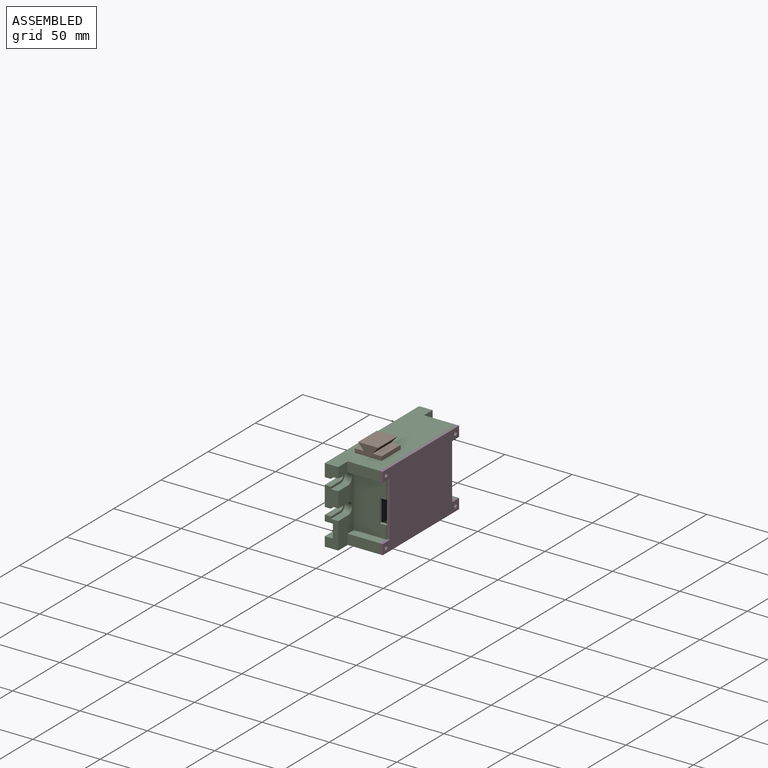
[diagram: assembled view]
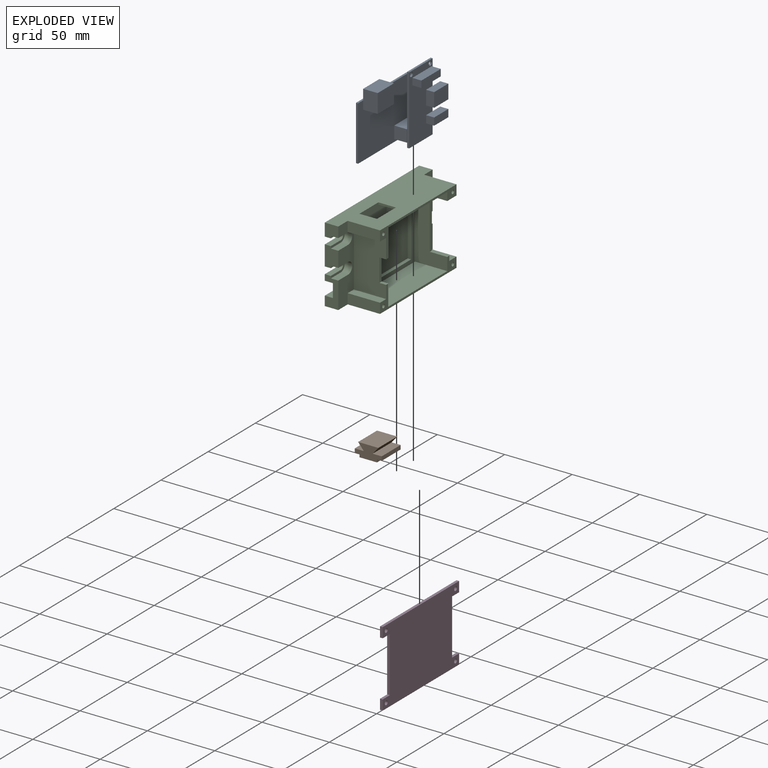
[diagram: exploded view]
GUIDED TOUR — MATED ASSEMBLY (Onshape document 828c67a339ef69960d78659a, AutoMate assembly 828c67a339ef69960d78659a_96a735180d1c8995cbf09fb1_28aa43b5a23b9c376b3a08d2_default)

This assembly has 4 components, labeled P0..P3 below (a component is one placed occurrence of a part; the same part can appear more than once), held together by 9 mates. A mate is a constraint between two components; its type names the relative motion it leaves free:
  PLANAR — leaves sliding in the plane through the listed point (normal = the listed direction) and rotation about that normal free.
Axis/direction vectors are unit vectors and 'through' points are millimeter coordinates, both in the assembly's world frame.

MATES
  1. PLANAR "Eben 1": P2 <-> P0, direction (0.000, 0.000, 1.000) through (-73.11, -57.57, 11.95) mm
  2. PLANAR "Eben 6": P2 <-> P3, direction (0.000, 0.000, -1.000) through (-66.88, -57.24, 10.45) mm
  3. PLANAR "Eben 3": P2 <-> P0, direction (0.000, 1.000, 0.000) through (-61.79, -88.82, 38.63) mm
  4. PLANAR "Eben 4": P2 <-> P3, direction (1.000, 0.000, 0.000) through (-49.11, -88.82, 11.95) mm
  5. PLANAR "Eben 5": P2 <-> P3, direction (0.000, 1.000, 0.000) through (-61.11, -16.57, 14.20) mm
  6. PLANAR "Eben 9": P2 <-> P1, direction (0.000, -1.000, 0.000) through (-66.61, -65.07, 65.70) mm
  7. PLANAR "Eben 7": P2 <-> P1, direction (0.000, 0.000, 1.000) through (-60.11, -65.07, 66.45) mm
  8. PLANAR "Eben 8": P2 <-> P1, direction (1.000, 0.000, 0.000) through (-73.11, -65.07, 64.95) mm
  9. PLANAR "Eben 2": P2 <-> P0, direction (1.000, 0.000, 0.000) through (-73.11, -64.55, 41.88) mm

ASSEMBLY ORDER
  1. P1 — the base component [order verified]
  2. P2 [order verified]
  3. P0 [order verified]
  4. P3 [order verified]
Order-tag legend:
  [order verified] — this step's position reverses a verified removal order: the component was checked to insert without passing through the ones already placed.

Of the 4 components, 2 carry the full construction recipe — the FeatureScript program that regenerates the part's solid from scratch; the rest are supplied as boundary geometry only.
Each toured component is shown spotlighted twice — in the assembled view, then in the exploded view, where a leader line traces a displaced component back to its assembled socket (saturated green if recipe-attached, orange if geometry-only; every other component desaturated gray) — followed by its recipe or geometry summary and the mates that hold it.
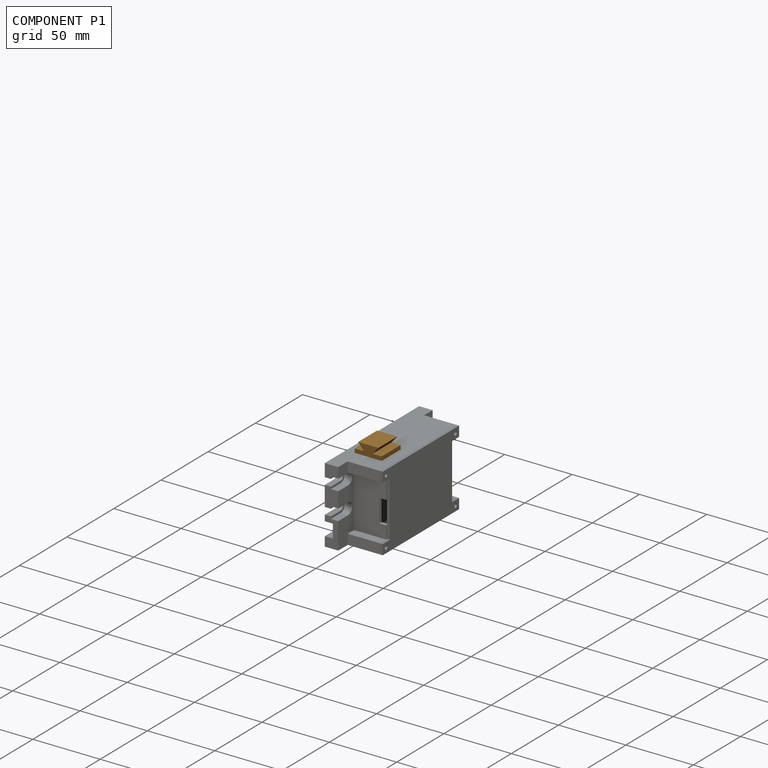
[diagram: component P1 — assembled]
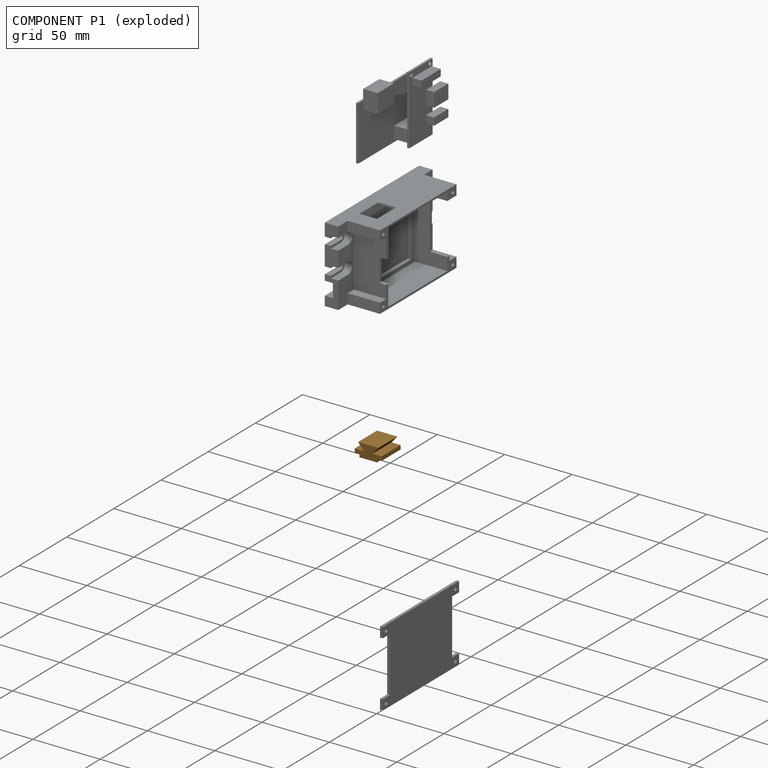
[diagram: component P1 — exploded]
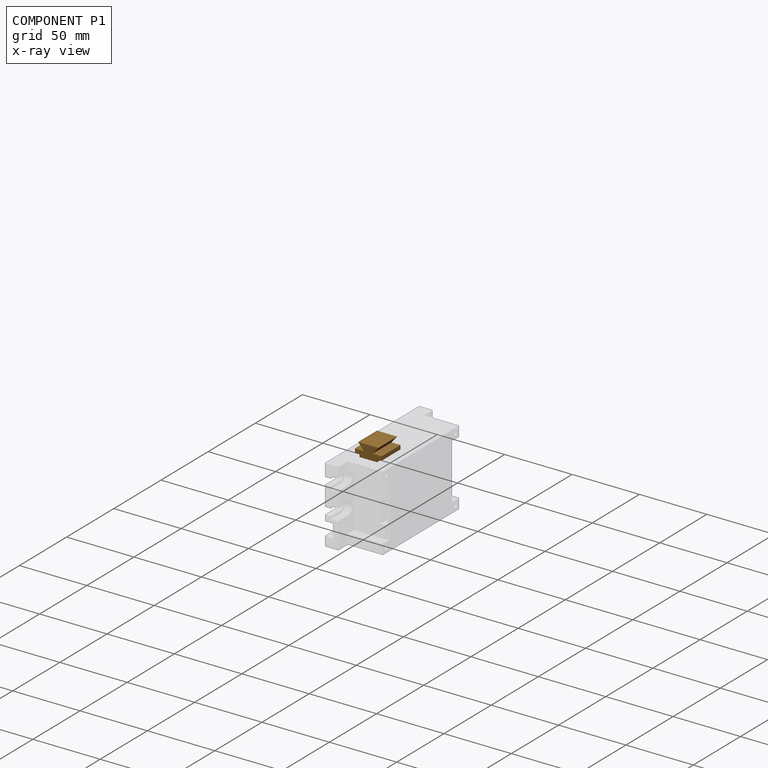
[diagram: component P1 — x-ray view]
COMPONENT P1 — geometry summary (no construction recipe available for this part):
  bounding box: 20.0 x 20.0 x 10.0 mm
  B-rep topology: 1 solid, 14 faces, 72 edges
  volume: 2800 mm^3 (70% of its bounding box)
  symmetry: 2-fold rotationally symmetric about the z axis; mirror-symmetric across its x mid-plane, y mid-plane
Held by: PLANAR mate "Eben 9" to P2; PLANAR mate "Eben 7" to P2; PLANAR mate "Eben 8" to P2.
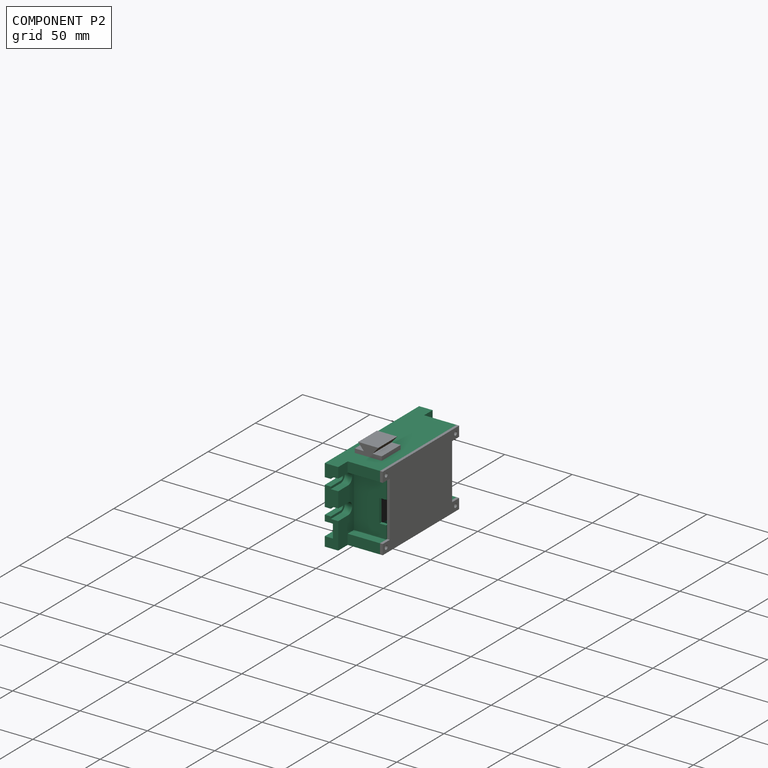
[diagram: component P2 — assembled]
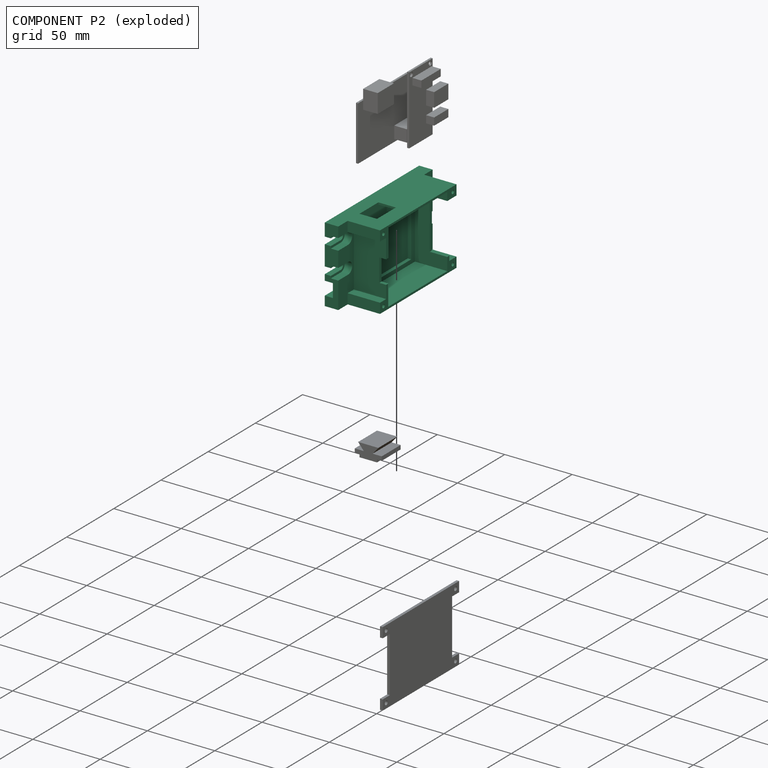
[diagram: component P2 — exploded]
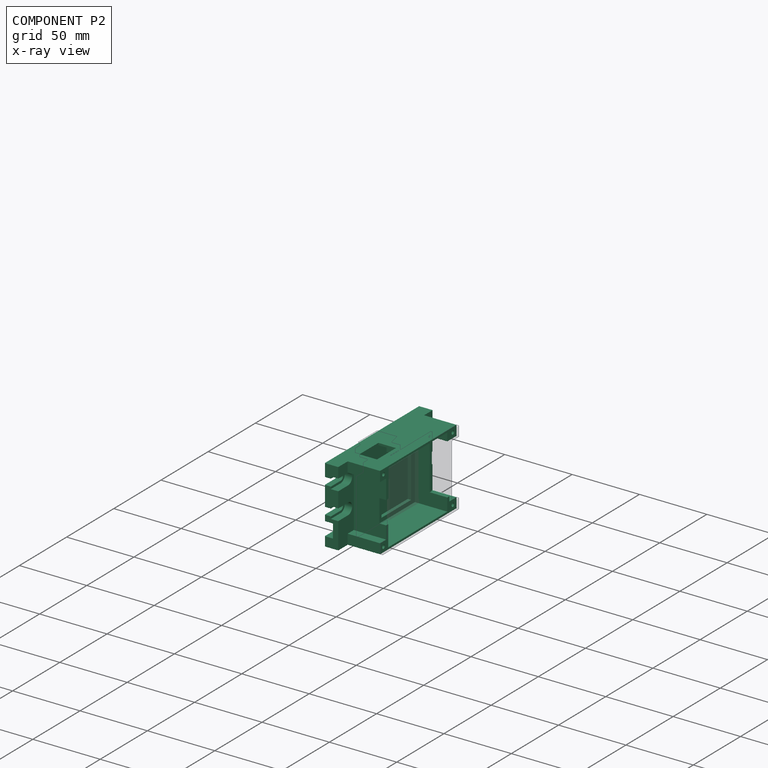
[diagram: component P2 — x-ray view]
COMPONENT P2 — recipe-attached (CADFS 00468085, mesh-verified: the recipe's output STEP matches this component's geometry to below the mesh-comparison resolution (tessellation chordal tolerance ~0.179 mm)).
Held by: PLANAR mate "Eben 1" to P0; PLANAR mate "Eben 6" to P3; PLANAR mate "Eben 3" to P0; PLANAR mate "Eben 4" to P3; PLANAR mate "Eben 5" to P3; PLANAR mate "Eben 9" to P1; PLANAR mate "Eben 7" to P1; PLANAR mate "Eben 8" to P1; PLANAR mate "Eben 2" to P0.
Construction recipe (FeatureScript — the CAD program that rebuilds this solid; sketch coordinates are in the units given by the * unit suffixes, e.g. mm):

FeatureScript 1511;
import(path : "onshape/std/geometry.fs", version : "1511.0");
import(path : "onshape/std/common.fs", version : "1511.0");
const mm = millimeter;
const VERTEX = EntityType.VERTEX;
const EDGE = EntityType.EDGE;
const FACE = EntityType.FACE;
const BODY = EntityType.BODY;
function v(x, y){return vector(x, y);}
function OD(order){return orderDisambiguation(order);}
function OSD(set){return originalSetDisambiguation(set);}
function TD(topology){return topologyDisambiguation(topology);}
function TDD(query){return trueDependencyDisambiguation(query);}
function sQuery(a, b, c) {return sketchEntityQuery(a, b, c);}

annotation { "Feature Type Name" : "Feature", "Feature Type Description" : "" }
export const myFeature = defineFeature(function(context is Context, id is Id, definition is map)
    precondition{}
    {
        {
            var Q0;
            Q0=qCreatedBy(makeId("Front.planeOp"),FACE);
            var sketch = newSketch(context, id + "F0", { "sketchPlane" : qUnion([Q0])});
            skLineSegment(sketch, "E0", {"start": v(-65, 0) * mm, "end": v(-65, 5) * mm});
            skLineSegment(sketch, "E1", {"start": v(-65, 5) * mm, "end": v(-50, 5) * mm});
            skLineSegment(sketch, "E2", {"start": v(-50, 5) * mm, "end": v(-50, 61) * mm});
            skLineSegment(sketch, "E3", {"start": v(-50, 61) * mm, "end": v(50, 61) * mm});
            skLineSegment(sketch, "E4", {"start": v(50, 61) * mm, "end": v(50, 5) * mm});
            skLineSegment(sketch, "E5", {"start": v(50, 5) * mm, "end": v(65, 5) * mm});
            skLineSegment(sketch, "E6", {"start": v(65, 5) * mm, "end": v(65, 0) * mm});
            skLineSegment(sketch, "E7", {"start": v(65, 0) * mm, "end": v(-65, 0) * mm});
            skLineSegment(sketch, "E8", {"start": v(-66.2, 33) * mm, "end": v(67.97, 33) * mm, "construction": true});
            skLineSegment(sketch, "E9.bottom", {"start": v(-38, 45.5) * mm, "end": v(38, 45.5) * mm, "construction": true});
            skLineSegment(sketch, "E9.top", {"start": v(-38, 20.5) * mm, "end": v(38, 20.5) * mm, "construction": true});
            skLineSegment(sketch, "E9.left", {"start": v(-38, 45.5) * mm, "end": v(-38, 20.5) * mm, "construction": true});
            skLineSegment(sketch, "E9.right", {"start": v(38, 45.5) * mm, "end": v(38, 20.5) * mm, "construction": true});
            skSolve(sketch);
        }
        {
            var Q0;
            Q0=qSketchRegion(id+"F0",true);
            extrude(context, id + "F1", {"entities" : qUnion([Q0]), "depth" : 12 * mm});
        }
        {
            var Q0;
            Q0=makeQuery(id+"F1.opExtrude","SWEPT_FACE",FACE,{"disambiguationData":[OSD([sQuery(id+"F0.wireOp",EDGE,"E7")])]});
            var sketch = newSketch(context, id + "F2", { "sketchPlane" : qUnion([Q0])});
            skLineSegment(sketch, "E10", {"start": v(-65, 6) * mm, "end": v(65, 6) * mm, "construction": true});
            skArc(sketch, "E11", {"start": v(-63, 2.65) * mm, "mid": v(-59.65, 6) * mm, "end": v(-63, 9.35) * mm});
            skArc(sketch, "E12", {"start": v(63, 9.35) * mm, "mid": v(59.65, 6) * mm, "end": v(63, 2.65) * mm});
            skLineSegment(sketch, "E13", {"start": v(-63, 9.35) * mm, "end": v(-65, 9.35) * mm});
            skLineSegment(sketch, "E14", {"start": v(-63, 2.65) * mm, "end": v(-65, 2.65) * mm});
            skLineSegment(sketch, "E15", {"start": v(-65, 9.35) * mm, "end": v(-65, 2.65) * mm});
            skLineSegment(sketch, "E16", {"start": v(63, 9.35) * mm, "end": v(65, 9.35) * mm});
            skLineSegment(sketch, "E17", {"start": v(63, 2.65) * mm, "end": v(65, 2.65) * mm});
            skLineSegment(sketch, "E18", {"start": v(65, 2.65) * mm, "end": v(65, 9.35) * mm});
            skSolve(sketch);
        }
        {
            var Q0;
            Q0=qSketchRegion(id+"F2",true);
            extrude(context, id + "F3", {"entities" : qUnion([Q0]), "operationType" : NewBodyOperationType.REMOVE, "endBound" : BoundingType.UP_TO_NEXT, "oppositeDirection" : true, "depth" : 25 * mm});
        }
        {
            var Q0;
            Q0=makeQuery(id+"F1.opExtrude","CAP_FACE",FACE,{"disambiguationData":[OSD([sQuery(id+"F0.wireOp",EDGE,"E0"),sQuery(id+"F0.wireOp",EDGE,"E1"),sQuery(id+"F0.wireOp",EDGE,"E2"),sQuery(id+"F0.wireOp",EDGE,"E3"),sQuery(id+"F0.wireOp",EDGE,"E4"),sQuery(id+"F0.wireOp",EDGE,"E5"),sQuery(id+"F0.wireOp",EDGE,"E6"),sQuery(id+"F0.wireOp",EDGE,"E7"),sQuery(id+"F0.wireOp",EDGE,"1FfViyJT-DljK-amIZ-o1TR-3zgzdxAZsou7"),sQuery(id+"F0.wireOp",EDGE,"gixynyuw-ZIOC-nsWz-2FFo-MeVdqOtkgReW"),sQuery(id+"F0.wireOp",EDGE,"ZI2TBTUG-xJa5-HuRL-xrIj-cNeYduNTSZAt"),sQuery(id+"F0.wireOp",EDGE,"0vhO7cF5-ESn1-LKnd-qrl0-O6yNl9EkdQ3n")])],"isStart":true});
            var sketch = newSketch(context, id + "F4", { "sketchPlane" : qUnion([Q0])});
            skLineSegment(sketch, "E19.bottom", {"start": v(50, 5) * mm, "end": v(-50, 5) * mm});
            skLineSegment(sketch, "E19.top", {"start": v(50, 61) * mm, "end": v(-50, 61) * mm});
            skLineSegment(sketch, "E19.left", {"start": v(50, 5) * mm, "end": v(50, 61) * mm});
            skLineSegment(sketch, "E19.right", {"start": v(-50, 5) * mm, "end": v(-50, 61) * mm});
            skSolve(sketch);
        }
        {
            var Q0;
            Q0=qSketchRegion(id+"F4",true);
            extrude(context, id + "F5", {"entities" : qUnion([Q0]), "operationType" : NewBodyOperationType.REMOVE, "oppositeDirection" : true, "depth" : 2 * mm});
        }
        {
            var Q0;
            Q0=makeQuery(id+"F1.opExtrude","CAP_FACE",FACE,{"disambiguationData":[OSD([sQuery(id+"F0.wireOp",EDGE,"E0"),sQuery(id+"F0.wireOp",EDGE,"E1"),sQuery(id+"F0.wireOp",EDGE,"E2"),sQuery(id+"F0.wireOp",EDGE,"E3"),sQuery(id+"F0.wireOp",EDGE,"E4"),sQuery(id+"F0.wireOp",EDGE,"E5"),sQuery(id+"F0.wireOp",EDGE,"E6"),sQuery(id+"F0.wireOp",EDGE,"E7"),sQuery(id+"F0.wireOp",EDGE,"1FfViyJT-DljK-amIZ-o1TR-3zgzdxAZsou7"),sQuery(id+"F0.wireOp",EDGE,"gixynyuw-ZIOC-nsWz-2FFo-MeVdqOtkgReW"),sQuery(id+"F0.wireOp",EDGE,"ZI2TBTUG-xJa5-HuRL-xrIj-cNeYduNTSZAt"),sQuery(id+"F0.wireOp",EDGE,"0vhO7cF5-ESn1-LKnd-qrl0-O6yNl9EkdQ3n")])],"isStart":true});
            var sketch = newSketch(context, id + "F6", { "sketchPlane" : qUnion([Q0])});
            skLineSegment(sketch, "E20.bottom", {"start": v(65, 5) * mm, "end": v(-65, 5) * mm});
            skLineSegment(sketch, "E20.top", {"start": v(65, 0) * mm, "end": v(-65, 0) * mm});
            skLineSegment(sketch, "E20.left", {"start": v(65, 5) * mm, "end": v(65, 0) * mm});
            skLineSegment(sketch, "E20.right", {"start": v(-65, 5) * mm, "end": v(-65, 0) * mm});
            skSolve(sketch);
        }
        {
            var Q0;
            Q0=qSketchRegion(id+"F6",true);
            extrude(context, id + "F7", {"entities" : qUnion([Q0]), "operationType" : NewBodyOperationType.REMOVE, "endBound" : BoundingType.THROUGH_ALL, "oppositeDirection" : true, "depth" : 25 * mm});
        }
        {
            var Q0;
            Q0=makeQuery(id+"F1.opExtrude","CAP_FACE",FACE,{"disambiguationData":[OSD([sQuery(id+"F0.wireOp",EDGE,"E0"),sQuery(id+"F0.wireOp",EDGE,"E1"),sQuery(id+"F0.wireOp",EDGE,"E2"),sQuery(id+"F0.wireOp",EDGE,"E3"),sQuery(id+"F0.wireOp",EDGE,"E4"),sQuery(id+"F0.wireOp",EDGE,"E5"),sQuery(id+"F0.wireOp",EDGE,"E6"),sQuery(id+"F0.wireOp",EDGE,"E7"),sQuery(id+"F0.wireOp",EDGE,"1FfViyJT-DljK-amIZ-o1TR-3zgzdxAZsou7"),sQuery(id+"F0.wireOp",EDGE,"gixynyuw-ZIOC-nsWz-2FFo-MeVdqOtkgReW"),sQuery(id+"F0.wireOp",EDGE,"ZI2TBTUG-xJa5-HuRL-xrIj-cNeYduNTSZAt"),sQuery(id+"F0.wireOp",EDGE,"0vhO7cF5-ESn1-LKnd-qrl0-O6yNl9EkdQ3n")])],"isStart":false});
            var sketch = newSketch(context, id + "F8", { "sketchPlane" : qUnion([Q0])});
            skLineSegment(sketch, "E21.bottom", {"start": v(-52.5, 6) * mm, "end": v(52.5, 6) * mm, "construction": true});
            skLineSegment(sketch, "E21.top", {"start": v(-52.5, 60) * mm, "end": v(52.5, 60) * mm, "construction": true});
            skLineSegment(sketch, "E21.left", {"start": v(-52.5, 6) * mm, "end": v(-52.5, 60) * mm, "construction": true});
            skLineSegment(sketch, "E21.right", {"start": v(52.5, 6) * mm, "end": v(52.5, 60) * mm, "construction": true});
            skLineSegment(sketch, "E22", {"start": v(-65.76, 33) * mm, "end": v(79.5, 33) * mm, "construction": true});
            skArc(sketch, "E23.MirrorCS", {"start": v(-39.5, 39.6) * mm, "mid": v(-36.9, 37) * mm, "end": v(-39.5, 34.4) * mm});
            skLineSegment(sketch, "E24", {"start": v(0, 73.09) * mm, "end": v(0, -19.71) * mm, "construction": true});
            skPoint(sketch, "E24.startSnap0", {"position": v(0, 61) * mm});
            skLineSegment(sketch, "E25", {"start": v(-39.5, 39.6) * mm, "end": v(-50, 39.6) * mm});
            skLineSegment(sketch, "E26", {"start": v(-50, 39.6) * mm, "end": v(-50, 34.4) * mm});
            skLineSegment(sketch, "E27", {"start": v(-50, 34.4) * mm, "end": v(-39.5, 34.4) * mm});
            skLineSegment(sketch, "E28.0.1.0", {"start": v(-50, 19.6) * mm, "end": v(-50, 14.4) * mm});
            skLineSegment(sketch, "E28.0.1.1", {"start": v(-50, 14.4) * mm, "end": v(-39.5, 14.4) * mm});
            skLineSegment(sketch, "E28.0.1.2", {"start": v(-39.5, 19.6) * mm, "end": v(-50, 19.6) * mm});
            skArc(sketch, "E28.0.1.3", {"start": v(-39.5, 19.6) * mm, "mid": v(-36.9, 17) * mm, "end": v(-39.5, 14.4) * mm});
            skLineSegment(sketch, "E28.direction1", {"start": v(-50, 34.4) * mm, "end": v(-25, 34.4) * mm, "construction": true});
            skLineSegment(sketch, "E28.direction2", {"start": v(-50, 34.4) * mm, "end": v(-50, 14.4) * mm, "construction": true});
            skArc(sketch, "E29.MirrorCS", {"start": v(39.5, 39.6) * mm, "mid": v(36.9, 37) * mm, "end": v(39.5, 34.4) * mm});
            skLineSegment(sketch, "E30.MirrorCS", {"start": v(50, 39.6) * mm, "end": v(50, 34.4) * mm});
            skLineSegment(sketch, "E31.MirrorCS", {"start": v(50, 19.6) * mm, "end": v(50, 14.4) * mm});
            skArc(sketch, "E32.MirrorCS", {"start": v(39.5, 19.6) * mm, "mid": v(36.9, 17) * mm, "end": v(39.5, 14.4) * mm});
            skLineSegment(sketch, "E33.MirrorCS", {"start": v(50, 34.4) * mm, "end": v(39.5, 34.4) * mm});
            skLineSegment(sketch, "E34.MirrorCS", {"start": v(50, 34.4) * mm, "end": v(50, 14.4) * mm, "construction": true});
            skLineSegment(sketch, "E35.MirrorCS", {"start": v(50, 34.4) * mm, "end": v(25, 34.4) * mm, "construction": true});
            skLineSegment(sketch, "E36.MirrorCS", {"start": v(39.5, 39.6) * mm, "end": v(50, 39.6) * mm});
            skLineSegment(sketch, "E37.MirrorCS", {"start": v(50, 14.4) * mm, "end": v(39.5, 14.4) * mm});
            skLineSegment(sketch, "E38.MirrorCS", {"start": v(39.5, 19.6) * mm, "end": v(50, 19.6) * mm});
            skSolve(sketch);
        }
        {
            var Q0;
            Q0=qSketchRegion(id+"F8",true);
            extrude(context, id + "F9", {"entities" : qUnion([Q0]), "operationType" : NewBodyOperationType.REMOVE, "endBound" : BoundingType.THROUGH_ALL, "oppositeDirection" : true, "depth" : 25 * mm});
        }
        {
            var Q0;
            Q0=makeQuery(id+"F1.opExtrude","CAP_FACE",FACE,{"disambiguationData":[OSD([sQuery(id+"F0.wireOp",EDGE,"E0"),sQuery(id+"F0.wireOp",EDGE,"E1"),sQuery(id+"F0.wireOp",EDGE,"E2"),sQuery(id+"F0.wireOp",EDGE,"E3"),sQuery(id+"F0.wireOp",EDGE,"E4"),sQuery(id+"F0.wireOp",EDGE,"E5"),sQuery(id+"F0.wireOp",EDGE,"E6"),sQuery(id+"F0.wireOp",EDGE,"E7"),sQuery(id+"F0.wireOp",EDGE,"1FfViyJT-DljK-amIZ-o1TR-3zgzdxAZsou7"),sQuery(id+"F0.wireOp",EDGE,"gixynyuw-ZIOC-nsWz-2FFo-MeVdqOtkgReW"),sQuery(id+"F0.wireOp",EDGE,"ZI2TBTUG-xJa5-HuRL-xrIj-cNeYduNTSZAt"),sQuery(id+"F0.wireOp",EDGE,"0vhO7cF5-ESn1-LKnd-qrl0-O6yNl9EkdQ3n")])],"isStart":false});
            var sketch = newSketch(context, id + "F10", { "sketchPlane" : qUnion([Q0])});
            skArc(sketch, "E39", {"start": v(-39.5, 32.75) * mm, "mid": v(-35.25, 37) * mm, "end": v(-39.5, 41.25) * mm});
            skLineSegment(sketch, "E40", {"start": v(-39.5, 41.25) * mm, "end": v(-50, 41.25) * mm});
            skLineSegment(sketch, "E41", {"start": v(-39.5, 32.75) * mm, "end": v(-50, 32.75) * mm});
            skLineSegment(sketch, "E42", {"start": v(0, 67.71) * mm, "end": v(0, -2.74) * mm, "construction": true});
            skPoint(sketch, "E42.startSnap0", {"position": v(0, 61) * mm});
            skLineSegment(sketch, "E43.0.1.0", {"start": v(-39.5, 12.75) * mm, "end": v(-50, 12.75) * mm});
            skLineSegment(sketch, "E43.0.1.1", {"start": v(-39.5, 21.25) * mm, "end": v(-50, 21.25) * mm});
            skArc(sketch, "E43.0.1.2", {"start": v(-39.5, 12.75) * mm, "mid": v(-35.25, 17) * mm, "end": v(-39.5, 21.25) * mm});
            skLineSegment(sketch, "E43.direction1", {"start": v(-50, 32.75) * mm, "end": v(-25, 32.75) * mm, "construction": true});
            skLineSegment(sketch, "E43.direction2", {"start": v(-50, 32.75) * mm, "end": v(-50, 12.75) * mm, "construction": true});
            skLineSegment(sketch, "E44.MirrorCS", {"start": v(39.5, 32.75) * mm, "end": v(50, 32.75) * mm});
            skLineSegment(sketch, "E45.MirrorCS", {"start": v(50, 32.75) * mm, "end": v(50, 12.75) * mm, "construction": true});
            skLineSegment(sketch, "E46.MirrorCS", {"start": v(39.5, 21.25) * mm, "end": v(50, 21.25) * mm});
            skLineSegment(sketch, "E47.MirrorCS", {"start": v(39.5, 12.75) * mm, "end": v(50, 12.75) * mm});
            skArc(sketch, "E48.MirrorCS", {"start": v(39.5, 12.75) * mm, "mid": v(35.25, 17) * mm, "end": v(39.5, 21.25) * mm});
            skArc(sketch, "E49.MirrorCS", {"start": v(39.5, 32.75) * mm, "mid": v(35.25, 37) * mm, "end": v(39.5, 41.25) * mm});
            skLineSegment(sketch, "E50.MirrorCS", {"start": v(39.5, 41.25) * mm, "end": v(50, 41.25) * mm});
            skLineSegment(sketch, "E51.MirrorCS", {"start": v(50, 32.75) * mm, "end": v(25, 32.75) * mm, "construction": true});
            skSolve(sketch);
        }
        {
            var Q0;
            Q0=makeQuery(id+"F10.imprint","IMPRINT",FACE,{"disambiguationData":[TD([[makeQuery(id+"F10.imprint","IMPRINT",EDGE,{"derivedFrom":sQuery(id+"F10.wireOp",EDGE,"E39")}),1.0]])]});
            var Q1;
            {var subQ3=sQuery(id+"F10.wireOp",EDGE,"E43.0.1.0");Q1=makeQuery(id+"F10.imprint","IMPRINT",FACE,{"disambiguationData":[TD([[makeQuery(id+"F10.imprint","IMPRINT",EDGE,{"derivedFrom":subQ3}),-1.0]])]});}
            var Q2;
            {var subQ3=sQuery(id+"F10.wireOp",EDGE,"E44.MirrorCS");Q2=makeQuery(id+"F10.imprint","IMPRINT",FACE,{"disambiguationData":[TD([[makeQuery(id+"F10.imprint","IMPRINT",EDGE,{"derivedFrom":subQ3}),1.0]])]});}
            var Q3;
            {var subQ1=sQuery(id+"F10.wireOp",EDGE,"E46.MirrorCS");Q3=makeQuery(id+"F10.imprint","IMPRINT",FACE,{"disambiguationData":[TD([[makeQuery(id+"F10.imprint","IMPRINT",EDGE,{"derivedFrom":subQ1}),-1.0]])]});}
            extrude(context, id + "F11", {"entities" : qUnion([Q0, Q1, Q2, Q3]), "operationType" : NewBodyOperationType.REMOVE, "oppositeDirection" : true, "depth" : 5.5 * mm});
        }
        {
            var Q0;
            Q0=makeQuery(id+"F1.opExtrude","CAP_FACE",FACE,{"disambiguationData":[OSD([sQuery(id+"F0.wireOp",EDGE,"E0"),sQuery(id+"F0.wireOp",EDGE,"E1"),sQuery(id+"F0.wireOp",EDGE,"E2"),sQuery(id+"F0.wireOp",EDGE,"E3"),sQuery(id+"F0.wireOp",EDGE,"E4"),sQuery(id+"F0.wireOp",EDGE,"E5"),sQuery(id+"F0.wireOp",EDGE,"E6"),sQuery(id+"F0.wireOp",EDGE,"E7"),sQuery(id+"F0.wireOp",EDGE,"1FfViyJT-DljK-amIZ-o1TR-3zgzdxAZsou7"),sQuery(id+"F0.wireOp",EDGE,"gixynyuw-ZIOC-nsWz-2FFo-MeVdqOtkgReW"),sQuery(id+"F0.wireOp",EDGE,"ZI2TBTUG-xJa5-HuRL-xrIj-cNeYduNTSZAt"),sQuery(id+"F0.wireOp",EDGE,"0vhO7cF5-ESn1-LKnd-qrl0-O6yNl9EkdQ3n")])],"isStart":false});
            var sketch = newSketch(context, id + "F12", { "sketchPlane" : qUnion([Q0])});
            skLineSegment(sketch, "E52", {"start": v(-67.67, 33) * mm, "end": v(65.75, 33) * mm, "construction": true});
            skPoint(sketch, "E52.startSnap0", {"position": v(-50, 33) * mm});
            skLineSegment(sketch, "E53", {"start": v(0, 70.32) * mm, "end": v(0, -7.36) * mm, "construction": true});
            skPoint(sketch, "E53.startSnap0", {"position": v(0, 61) * mm});
            skLineSegment(sketch, "E54.bottom", {"start": v(31.25, 59.5) * mm, "end": v(-31.25, 59.5) * mm});
            skLineSegment(sketch, "E54.top", {"start": v(31.25, 6.5) * mm, "end": v(-31.25, 6.5) * mm});
            skLineSegment(sketch, "E54.left", {"start": v(31.25, 59.5) * mm, "end": v(31.25, 6.5) * mm});
            skLineSegment(sketch, "E54.right", {"start": v(-31.25, 59.5) * mm, "end": v(-31.25, 6.5) * mm});
            skPoint(sketch, "E54.middle", {"position": v(0, 33) * mm});
            skLineSegment(sketch, "E55.bottom", {"start": v(33.5, 61) * mm, "end": v(-33.5, 61) * mm});
            skLineSegment(sketch, "E55.top", {"start": v(33.5, 5) * mm, "end": v(-33.5, 5) * mm});
            skLineSegment(sketch, "E55.left", {"start": v(33.5, 61) * mm, "end": v(33.5, 5) * mm});
            skLineSegment(sketch, "E55.right", {"start": v(-33.5, 61) * mm, "end": v(-33.5, 5) * mm});
            skSolve(sketch);
        }
        {
            var Q0;
            Q0=makeQuery(id+"F12.imprint","IMPRINT",FACE,{"disambiguationData":[TD([[makeQuery(id+"F12.imprint","IMPRINT",EDGE,{"derivedFrom":sQuery(id+"F12.wireOp",EDGE,"E54.bottom")}),-1.0]])]});
            extrude(context, id + "F13", {"entities" : qUnion([Q0]), "operationType" : NewBodyOperationType.ADD, "depth" : 24 * mm});
        }
        {
            var Q0;
            Q0=makeQuery(id+"F13.boolean.opBoolean","SPLIT",FACE,{"disambiguationData":[TD([makeQuery(id+"F13.opExtrude","SWEPT_FACE",FACE,{"disambiguationData":[OSD([sQuery(id+"F12.wireOp",EDGE,"E54.bottom")])]})])],"derivedFrom":makeQuery(id+"F1.opExtrude","CAP_FACE",FACE,{"disambiguationData":[OSD([sQuery(id+"F0.wireOp",EDGE,"E0"),sQuery(id+"F0.wireOp",EDGE,"E1"),sQuery(id+"F0.wireOp",EDGE,"E2"),sQuery(id+"F0.wireOp",EDGE,"E3"),sQuery(id+"F0.wireOp",EDGE,"E4"),sQuery(id+"F0.wireOp",EDGE,"E5"),sQuery(id+"F0.wireOp",EDGE,"E6"),sQuery(id+"F0.wireOp",EDGE,"E7"),sQuery(id+"F0.wireOp",EDGE,"1FfViyJT-DljK-amIZ-o1TR-3zgzdxAZsou7"),sQuery(id+"F0.wireOp",EDGE,"gixynyuw-ZIOC-nsWz-2FFo-MeVdqOtkgReW"),sQuery(id+"F0.wireOp",EDGE,"ZI2TBTUG-xJa5-HuRL-xrIj-cNeYduNTSZAt"),sQuery(id+"F0.wireOp",EDGE,"0vhO7cF5-ESn1-LKnd-qrl0-O6yNl9EkdQ3n")])],"isStart":false})});
            var sketch = newSketch(context, id + "F14", { "sketchPlane" : qUnion([Q0])});
            skLineSegment(sketch, "E56.bottom", {"start": v(-31.25, 6.5) * mm, "end": v(-1.25, 6.5) * mm});
            skLineSegment(sketch, "E56.top", {"start": v(-31.25, 14.5) * mm, "end": v(-1.25, 14.5) * mm});
            skLineSegment(sketch, "E56.left", {"start": v(-31.25, 6.5) * mm, "end": v(-31.25, 14.5) * mm});
            skLineSegment(sketch, "E56.right", {"start": v(-1.25, 6.5) * mm, "end": v(-1.25, 14.5) * mm});
            skSolve(sketch);
        }
        {
            var Q0;
            Q0=makeQuery(id+"F14.imprint","IMPRINT",FACE,{"disambiguationData":[TD([[makeQuery(id+"F14.imprint","IMPRINT",EDGE,{"derivedFrom":sQuery(id+"F14.wireOp",EDGE,"E56.bottom")}),-1.0]])]});
            extrude(context, id + "F15", {"entities" : qUnion([Q0]), "operationType" : NewBodyOperationType.ADD, "depth" : 12.8 * mm});
        }
        {
            var Q0;
            Q0=makeQuery(id+"F13.opExtrude","SWEPT_FACE",FACE,{"disambiguationData":[OSD([sQuery(id+"F12.wireOp",EDGE,"E55.right")])]});
            var sketch = newSketch(context, id + "F16", { "sketchPlane" : qUnion([Q0])});
            skLineSegment(sketch, "E57.bottom", {"start": v(36, 50) * mm, "end": v(23, 50) * mm});
            skLineSegment(sketch, "E57.top", {"start": v(36, 12.5) * mm, "end": v(23, 12.5) * mm});
            skLineSegment(sketch, "E57.left", {"start": v(36, 50) * mm, "end": v(36, 12.5) * mm});
            skLineSegment(sketch, "E57.right", {"start": v(23, 50) * mm, "end": v(23, 12.5) * mm});
            skSolve(sketch);
        }
        {
            var Q0;
            Q0=makeQuery(id+"F16.imprint","IMPRINT",FACE,{"disambiguationData":[TD([[makeQuery(id+"F16.imprint","IMPRINT",EDGE,{"derivedFrom":sQuery(id+"F16.wireOp",EDGE,"E57.bottom")}),1.0]])]});
            var Q1;
            Q1=makeQuery(id+"F13.opExtrude","SWEPT_FACE",FACE,{"disambiguationData":[OSD([sQuery(id+"F12.wireOp",EDGE,"E54.right")])]});
            extrude(context, id + "F17", {"entities" : qUnion([Q0]), "operationType" : NewBodyOperationType.REMOVE, "endBound" : BoundingType.UP_TO_SURFACE, "oppositeDirection" : true, "endBoundEntityFace" : qUnion([Q1]), "depth" : 25 * mm});
        }
        {
            var Q0;
            Q0=makeQuery(id+"F13.boolean.opBoolean","MERGE",FACE,{"derivedFrom":[makeQuery(id+"F7.boolean.opBoolean","COPY",FACE,{"derivedFrom":makeQuery(id+"F7.opExtrude","SWEPT_FACE",FACE,{"disambiguationData":[OSD([sQuery(id+"F6.wireOp",EDGE,"E20.bottom")])]})}),makeQuery(id+"F13.opExtrude","SWEPT_FACE",FACE,{"disambiguationData":[OSD([sQuery(id+"F12.wireOp",EDGE,"E55.top")])]})]});
            var sketch = newSketch(context, id + "F18", { "sketchPlane" : qUnion([Q0])});
            skLineSegment(sketch, "E58.bottom", {"start": v(7.5, 25) * mm, "end": v(27.5, 25) * mm});
            skLineSegment(sketch, "E58.top", {"start": v(7.5, 12) * mm, "end": v(27.5, 12) * mm});
            skLineSegment(sketch, "E58.left", {"start": v(7.5, 25) * mm, "end": v(7.5, 12) * mm});
            skLineSegment(sketch, "E58.right", {"start": v(27.5, 25) * mm, "end": v(27.5, 12) * mm});
            skSolve(sketch);
        }
        {
            var Q0;
            Q0=makeQuery(id+"F18.imprint","IMPRINT",FACE,{"disambiguationData":[TD([[makeQuery(id+"F18.imprint","IMPRINT",EDGE,{"derivedFrom":sQuery(id+"F18.wireOp",EDGE,"E58.bottom")}),-1.0]])]});
            extrude(context, id + "F19", {"entities" : qUnion([Q0]), "operationType" : NewBodyOperationType.REMOVE, "endBound" : BoundingType.UP_TO_NEXT, "oppositeDirection" : true, "depth" : 25 * mm});
        }
        {
            var Q0;
            Q0=makeQuery(id+"F15.opExtrude","CAP_FACE",FACE,{"disambiguationData":[OSD([sQuery(id+"F14.wireOp",EDGE,"E56.bottom"),sQuery(id+"F14.wireOp",EDGE,"E56.top"),sQuery(id+"F14.wireOp",EDGE,"E56.left"),sQuery(id+"F14.wireOp",EDGE,"E56.right")])],"isStart":false});
            var sketch = newSketch(context, id + "F20", { "sketchPlane" : qUnion([Q0])});
            skPoint(sketch, "E59", {"position": v(-27.95, 9.5) * mm});
            skPoint(sketch, "E60", {"position": v(-7.95, 9.5) * mm});
            skSolve(sketch);
        }
        {
            var Q0;
            Q0=sQuery(id+"F20.wireOp",VERTEX,"E59");
            var Q1;
            Q1=sQuery(id+"F20.wireOp",VERTEX,"E60");
            var Q2;
            Q2=makeQuery(id+"F1.opExtrude","SWEPT_BODY",BODY,{"disambiguationData":[OSD([sQuery(id+"F0.wireOp",EDGE,"E0"),sQuery(id+"F0.wireOp",EDGE,"E1"),sQuery(id+"F0.wireOp",EDGE,"E2"),sQuery(id+"F0.wireOp",EDGE,"E3"),sQuery(id+"F0.wireOp",EDGE,"E4"),sQuery(id+"F0.wireOp",EDGE,"E5"),sQuery(id+"F0.wireOp",EDGE,"E6"),sQuery(id+"F0.wireOp",EDGE,"E7"),sQuery(id+"F0.wireOp",EDGE,"1FfViyJT-DljK-amIZ-o1TR-3zgzdxAZsou7"),sQuery(id+"F0.wireOp",EDGE,"gixynyuw-ZIOC-nsWz-2FFo-MeVdqOtkgReW"),sQuery(id+"F0.wireOp",EDGE,"ZI2TBTUG-xJa5-HuRL-xrIj-cNeYduNTSZAt"),sQuery(id+"F0.wireOp",EDGE,"0vhO7cF5-ESn1-LKnd-qrl0-O6yNl9EkdQ3n")])]});
            hole(context, id + "F21", {"style" : HoleStyle.SIMPLE, "endStyle" : HoleEndStyle.BLIND, "holeDiameter" : 2.7 * mm, "holeDepth" : 12 * mm, "isTappedThrough" : true, "tappedDepth" : 12 * mm, "tapClearance" : 3, "startFromSketch" : true, "locations" : qUnion([Q0, Q1]), "scope" : qUnion([Q2])});
        }
        {
            var Q0;
            Q0=makeQuery(id+"F19.boolean.opBoolean","MERGE",FACE,{"derivedFrom":[makeQuery(id+"F13.boolean.opBoolean","SPLIT",FACE,{"disambiguationData":[TD([makeQuery(id+"F13.opExtrude","SWEPT_FACE",FACE,{"disambiguationData":[OSD([sQuery(id+"F12.wireOp",EDGE,"E54.bottom")])]})])],"derivedFrom":makeQuery(id+"F1.opExtrude","CAP_FACE",FACE,{"disambiguationData":[OSD([sQuery(id+"F0.wireOp",EDGE,"E0"),sQuery(id+"F0.wireOp",EDGE,"E1"),sQuery(id+"F0.wireOp",EDGE,"E2"),sQuery(id+"F0.wireOp",EDGE,"E3"),sQuery(id+"F0.wireOp",EDGE,"E4"),sQuery(id+"F0.wireOp",EDGE,"E5"),sQuery(id+"F0.wireOp",EDGE,"E6"),sQuery(id+"F0.wireOp",EDGE,"E7"),sQuery(id+"F0.wireOp",EDGE,"1FfViyJT-DljK-amIZ-o1TR-3zgzdxAZsou7"),sQuery(id+"F0.wireOp",EDGE,"gixynyuw-ZIOC-nsWz-2FFo-MeVdqOtkgReW"),sQuery(id+"F0.wireOp",EDGE,"ZI2TBTUG-xJa5-HuRL-xrIj-cNeYduNTSZAt"),sQuery(id+"F0.wireOp",EDGE,"0vhO7cF5-ESn1-LKnd-qrl0-O6yNl9EkdQ3n")])],"isStart":false})}),makeQuery(id+"F19.opExtrude","SWEPT_FACE",FACE,{"disambiguationData":[OSD([sQuery(id+"F18.wireOp",EDGE,"E58.top")])]})]});
            var sketch = newSketch(context, id + "F22", { "sketchPlane" : qUnion([Q0])});
            skLineSegment(sketch, "E61.bottom", {"start": v(-27.25, 56.5) * mm, "end": v(23.25, 56.5) * mm});
            skLineSegment(sketch, "E61.top", {"start": v(-27.25, 18.5) * mm, "end": v(23.25, 18.5) * mm});
            skLineSegment(sketch, "E61.left", {"start": v(-27.25, 56.5) * mm, "end": v(-27.25, 18.5) * mm});
            skLineSegment(sketch, "E61.right", {"start": v(23.25, 56.5) * mm, "end": v(23.25, 18.5) * mm});
            skSolve(sketch);
        }
        {
            var Q0;
            Q0=makeQuery(id+"F22.imprint","IMPRINT",FACE,{"disambiguationData":[TD([[makeQuery(id+"F22.imprint","IMPRINT",EDGE,{"derivedFrom":sQuery(id+"F22.wireOp",EDGE,"E61.bottom")}),-1.0]])]});
            extrude(context, id + "F23", {"entities" : qUnion([Q0]), "operationType" : NewBodyOperationType.REMOVE, "oppositeDirection" : true, "depth" : 2.5 * mm});
        }
        {
            var Q0;
            {var subQ0=sQuery(id+"F0.wireOp",EDGE,"E3");var subQ1=sQuery(id+"F0.wireOp",EDGE,"E2");var subQ2=sQuery(id+"F0.wireOp",EDGE,"1FfViyJT-DljK-amIZ-o1TR-3zgzdxAZsou7");var subQ3=sQuery(id+"F0.wireOp",EDGE,"E1");var subQ4=sQuery(id+"F0.wireOp",EDGE,"ZI2TBTUG-xJa5-HuRL-xrIj-cNeYduNTSZAt");Q0=makeQuery(id+"F13.boolean.opBoolean","SPLIT",FACE,{"disambiguationData":[TD([makeQuery(id+"F1.opExtrude","SWEPT_FACE",FACE,{"disambiguationData":[OSD([subQ1])]})])],"derivedFrom":makeQuery(id+"F1.opExtrude","CAP_FACE",FACE,{"disambiguationData":[OSD([sQuery(id+"F0.wireOp",EDGE,"E0"),subQ3,subQ1,subQ0,sQuery(id+"F0.wireOp",EDGE,"E4"),sQuery(id+"F0.wireOp",EDGE,"E5"),sQuery(id+"F0.wireOp",EDGE,"E6"),sQuery(id+"F0.wireOp",EDGE,"E7"),subQ2,sQuery(id+"F0.wireOp",EDGE,"gixynyuw-ZIOC-nsWz-2FFo-MeVdqOtkgReW"),subQ4,sQuery(id+"F0.wireOp",EDGE,"0vhO7cF5-ESn1-LKnd-qrl0-O6yNl9EkdQ3n")])],"isStart":false})});}
            var sketch = newSketch(context, id + "F24", { "sketchPlane" : qUnion([Q0])});
            skLineSegment(sketch, "E62.bottom", {"start": v(-33.5, 5) * mm, "end": v(-41, 5) * mm});
            skLineSegment(sketch, "E62.top", {"start": v(-33.5, 12.5) * mm, "end": v(-41, 12.5) * mm});
            skLineSegment(sketch, "E62.left", {"start": v(-33.5, 5) * mm, "end": v(-33.5, 12.5) * mm});
            skLineSegment(sketch, "E62.right", {"start": v(-41, 5) * mm, "end": v(-41, 12.5) * mm});
            skLineSegment(sketch, "E63.2.0.0", {"start": v(114, 12.5) * mm, "end": v(106.5, 12.5) * mm});
            skLineSegment(sketch, "E63.2.0.1", {"start": v(106.5, 5) * mm, "end": v(106.5, 12.5) * mm});
            skLineSegment(sketch, "E63.2.0.2", {"start": v(114, 5) * mm, "end": v(106.5, 5) * mm});
            skLineSegment(sketch, "E63.2.0.3", {"start": v(114, 5) * mm, "end": v(114, 12.5) * mm});
            skLineSegment(sketch, "E64.0.1.0", {"start": v(-33.5, 53.5) * mm, "end": v(-41, 53.5) * mm});
            skLineSegment(sketch, "E64.0.1.1", {"start": v(-33.5, 53.5) * mm, "end": v(-33.5, 61) * mm});
            skLineSegment(sketch, "E64.0.1.2", {"start": v(-33.5, 61) * mm, "end": v(-41, 61) * mm});
            skLineSegment(sketch, "E64.0.1.3", {"start": v(-41, 53.5) * mm, "end": v(-41, 61) * mm});
            skLineSegment(sketch, "E64.1.0.0", {"start": v(40, 5) * mm, "end": v(32.5, 5) * mm});
            skLineSegment(sketch, "E64.1.0.1", {"start": v(40, 5) * mm, "end": v(40, 12.5) * mm});
            skLineSegment(sketch, "E64.1.0.2", {"start": v(40, 12.5) * mm, "end": v(32.5, 12.5) * mm});
            skLineSegment(sketch, "E64.1.0.3", {"start": v(32.5, 5) * mm, "end": v(32.5, 12.5) * mm});
            skLineSegment(sketch, "E64.1.1.0", {"start": v(40, 53.5) * mm, "end": v(32.5, 53.5) * mm});
            skLineSegment(sketch, "E64.1.1.1", {"start": v(40, 53.5) * mm, "end": v(40, 61) * mm});
            skLineSegment(sketch, "E64.1.1.2", {"start": v(40, 61) * mm, "end": v(32.5, 61) * mm});
            skLineSegment(sketch, "E64.1.1.3", {"start": v(32.5, 53.5) * mm, "end": v(32.5, 61) * mm});
            skLineSegment(sketch, "E64.direction1", {"start": v(-41, 5) * mm, "end": v(32.5, 5) * mm, "construction": true});
            skLineSegment(sketch, "E64.direction2", {"start": v(-41, 5) * mm, "end": v(-41, 53.5) * mm, "construction": true});
            skSolve(sketch);
        }
        {
            var Q0;
            Q0=makeQuery(id+"F24.imprint","IMPRINT",FACE,{"disambiguationData":[TD([[makeQuery(id+"F24.imprint","IMPRINT",EDGE,{"derivedFrom":sQuery(id+"F24.wireOp",EDGE,"E64.1.1.0")}),-1.0]])]});
            var Q1;
            Q1=makeQuery(id+"F24.imprint","IMPRINT",FACE,{"disambiguationData":[TD([[makeQuery(id+"F24.imprint","IMPRINT",EDGE,{"derivedFrom":sQuery(id+"F24.wireOp",EDGE,"E64.1.0.0")}),-1.0]])]});
            var Q2;
            Q2=makeQuery(id+"F24.imprint","IMPRINT",FACE,{"disambiguationData":[TD([[makeQuery(id+"F24.imprint","IMPRINT",EDGE,{"derivedFrom":sQuery(id+"F24.wireOp",EDGE,"E62.bottom")}),-1.0]])]});
            var Q3;
            Q3=makeQuery(id+"F24.imprint","IMPRINT",FACE,{"disambiguationData":[TD([[makeQuery(id+"F24.imprint","IMPRINT",EDGE,{"derivedFrom":sQuery(id+"F24.wireOp",EDGE,"E64.0.1.0")}),-1.0]])]});
            var Q4;
            Q4=makeQuery(id+"F13.opExtrude","CAP_FACE",FACE,{"disambiguationData":[OSD([sQuery(id+"F12.wireOp",EDGE,"E54.bottom"),sQuery(id+"F12.wireOp",EDGE,"E54.top"),sQuery(id+"F12.wireOp",EDGE,"E54.left"),sQuery(id+"F12.wireOp",EDGE,"E54.right"),sQuery(id+"F12.wireOp",EDGE,"E55.bottom"),sQuery(id+"F12.wireOp",EDGE,"E55.top"),sQuery(id+"F12.wireOp",EDGE,"E55.left"),sQuery(id+"F12.wireOp",EDGE,"E55.right")])],"isStart":false});
            extrude(context, id + "F25", {"entities" : qUnion([Q0, Q1, Q2, Q3]), "operationType" : NewBodyOperationType.ADD, "endBound" : BoundingType.UP_TO_SURFACE, "endBoundEntityFace" : qUnion([Q4]), "depth" : 25 * mm});
        }
        {
            var Q0;
            {var subQ0=sQuery(id+"F12.wireOp",EDGE,"E55.right");var subQ1=sQuery(id+"F12.wireOp",EDGE,"E55.left");var subQ2=sQuery(id+"F12.wireOp",EDGE,"E55.top");var subQ3=sQuery(id+"F12.wireOp",EDGE,"E55.bottom");var subQ4=sQuery(id+"F12.wireOp",EDGE,"E54.right");var subQ5=sQuery(id+"F12.wireOp",EDGE,"E54.left");var subQ6=sQuery(id+"F12.wireOp",EDGE,"E54.top");var subQ7=sQuery(id+"F12.wireOp",EDGE,"E54.bottom");Q0=makeQuery(id+"F25.boolean.opBoolean","MERGE",FACE,{"derivedFrom":[makeQuery(id+"F13.opExtrude","CAP_FACE",FACE,{"disambiguationData":[OSD([subQ7,subQ6,subQ5,subQ4,subQ3,subQ2,subQ1,subQ0])],"isStart":false}),makeQuery(id+"F25.opExtrude","CAP_FACE",FACE,{"disambiguationData":[OSD([subQ7,subQ6,subQ5,subQ4,subQ3,subQ2,subQ1,subQ0]),ownerDisambiguation([makeQuery(id+"F24.imprint","IMPRINT",EDGE,{"derivedFrom":sQuery(id+"F24.wireOp",EDGE,"E62.bottom")})])],"isStart":false}),makeQuery(id+"F25.opExtrude","CAP_FACE",FACE,{"disambiguationData":[OSD([subQ7,subQ6,subQ5,subQ4,subQ3,subQ2,subQ1,subQ0]),ownerDisambiguation([makeQuery(id+"F24.imprint","IMPRINT",EDGE,{"derivedFrom":sQuery(id+"F24.wireOp",EDGE,"E64.0.1.0")})])],"isStart":false}),makeQuery(id+"F25.opExtrude","CAP_FACE",FACE,{"disambiguationData":[OSD([subQ7,subQ6,subQ5,subQ4,subQ3,subQ2,subQ1,subQ0]),ownerDisambiguation([makeQuery(id+"F24.imprint","IMPRINT",EDGE,{"derivedFrom":sQuery(id+"F24.wireOp",EDGE,"E64.1.0.0")})])],"isStart":false}),makeQuery(id+"F25.opExtrude","CAP_FACE",FACE,{"disambiguationData":[OSD([subQ7,subQ6,subQ5,subQ4,subQ3,subQ2,subQ1,subQ0]),ownerDisambiguation([makeQuery(id+"F24.imprint","IMPRINT",EDGE,{"derivedFrom":sQuery(id+"F24.wireOp",EDGE,"E64.1.1.0")})])],"isStart":false})]});}
            var sketch = newSketch(context, id + "F26", { "sketchPlane" : qUnion([Q0])});
            skPoint(sketch, "E65", {"position": v(36.25, 57.25) * mm});
            skPoint(sketch, "E66", {"position": v(36.25, 8.75) * mm});
            skPoint(sketch, "E66.positionSnap0", {"position": v(40, 8.75) * mm});
            skPoint(sketch, "E67", {"position": v(-37.25, 8.75) * mm});
            skPoint(sketch, "E67.positionSnap0", {"position": v(-41, 8.75) * mm});
            skPoint(sketch, "E68", {"position": v(-37.25, 57.25) * mm});
            skPoint(sketch, "E68.positionSnap0", {"position": v(-41, 57.25) * mm});
            skSolve(sketch);
        }
        {
            var Q0;
            Q0=sQuery(id+"F26.wireOp",VERTEX,"E65");
            var Q1;
            Q1=sQuery(id+"F26.wireOp",VERTEX,"E66");
            var Q2;
            Q2=sQuery(id+"F26.wireOp",VERTEX,"E67");
            var Q3;
            Q3=sQuery(id+"F26.wireOp",VERTEX,"E68");
            var Q4;
            Q4=makeQuery(id+"F1.opExtrude","SWEPT_BODY",BODY,{"disambiguationData":[OSD([sQuery(id+"F0.wireOp",EDGE,"E0"),sQuery(id+"F0.wireOp",EDGE,"E1"),sQuery(id+"F0.wireOp",EDGE,"E2"),sQuery(id+"F0.wireOp",EDGE,"E3"),sQuery(id+"F0.wireOp",EDGE,"E4"),sQuery(id+"F0.wireOp",EDGE,"E5"),sQuery(id+"F0.wireOp",EDGE,"E6"),sQuery(id+"F0.wireOp",EDGE,"E7"),sQuery(id+"F0.wireOp",EDGE,"1FfViyJT-DljK-amIZ-o1TR-3zgzdxAZsou7"),sQuery(id+"F0.wireOp",EDGE,"gixynyuw-ZIOC-nsWz-2FFo-MeVdqOtkgReW"),sQuery(id+"F0.wireOp",EDGE,"ZI2TBTUG-xJa5-HuRL-xrIj-cNeYduNTSZAt"),sQuery(id+"F0.wireOp",EDGE,"0vhO7cF5-ESn1-LKnd-qrl0-O6yNl9EkdQ3n")])]});
            hole(context, id + "F27", {"style" : HoleStyle.SIMPLE, "endStyle" : HoleEndStyle.BLIND, "holeDiameter" : 2.7 * mm, "holeDepth" : 12 * mm, "isTappedThrough" : true, "tappedDepth" : 12 * mm, "tapClearance" : 3, "startFromSketch" : true, "locations" : qUnion([Q0, Q1, Q2, Q3]), "scope" : qUnion([Q4])});
        }
        {
            var Q0;
            Q0=makeQuery(id+"F13.opExtrude","SWEPT_FACE",FACE,{"disambiguationData":[OSD([sQuery(id+"F12.wireOp",EDGE,"E55.left")])]});
            var sketch = newSketch(context, id + "F28", { "sketchPlane" : qUnion([Q0])});
            skLineSegment(sketch, "E69.bottom", {"start": v(-36, 27) * mm, "end": v(-31, 27) * mm});
            skLineSegment(sketch, "E69.top", {"start": v(-36, 44) * mm, "end": v(-31, 44) * mm});
            skLineSegment(sketch, "E69.left", {"start": v(-36, 27) * mm, "end": v(-36, 44) * mm});
            skLineSegment(sketch, "E69.right", {"start": v(-31, 27) * mm, "end": v(-31, 44) * mm});
            skSolve(sketch);
        }
        {
            var Q0;
            Q0=makeQuery(id+"F28.imprint","IMPRINT",FACE,{"disambiguationData":[TD([[makeQuery(id+"F28.imprint","IMPRINT",EDGE,{"derivedFrom":sQuery(id+"F28.wireOp",EDGE,"E69.bottom")}),1.0]])]});
            extrude(context, id + "F29", {"entities" : qUnion([Q0]), "operationType" : NewBodyOperationType.REMOVE, "endBound" : BoundingType.UP_TO_NEXT, "oppositeDirection" : true, "depth" : 25 * mm});
        }
        {
            var Q0;
            Q0=makeQuery(id+"F5.boolean.opBoolean","COPY",FACE,{"derivedFrom":makeQuery(id+"F5.opExtrude","CAP_FACE",FACE,{"disambiguationData":[OSD([sQuery(id+"F4.wireOp",EDGE,"E19.bottom"),sQuery(id+"F4.wireOp",EDGE,"E19.top"),sQuery(id+"F4.wireOp",EDGE,"E19.left"),sQuery(id+"F4.wireOp",EDGE,"E19.right")])],"isStart":false})});
            var sketch = newSketch(context, id + "F30", { "sketchPlane" : qUnion([Q0])});
            skLineSegment(sketch, "E70", {"start": v(83.04, 49) * mm, "end": v(-54.72, 49) * mm, "construction": true});
            skLineSegment(sketch, "E71.bottom", {"start": v(-35, 54) * mm, "end": v(-50, 54) * mm});
            skLineSegment(sketch, "E71.top", {"start": v(-35, 44) * mm, "end": v(-50, 44) * mm});
            skLineSegment(sketch, "E71.left", {"start": v(-35, 54) * mm, "end": v(-35, 44) * mm});
            skLineSegment(sketch, "E71.right", {"start": v(-50, 54) * mm, "end": v(-50, 44) * mm});
            skSolve(sketch);
        }
        {
            var Q0;
            Q0 = qSketchRegion(id + "F30", true);
            var Q1;
            {var subQ1=sQuery(id+"F30.wireOp",EDGE,"DZUq5Ajw-Pgzt-FFcx-DODV-KdEy64VxGjmB.bottom");Q1=makeQuery(id+"F30.imprint","IMPRINT",FACE,{"disambiguationData":[TD([[makeQuery(id+"F30.imprint","IMPRINT",EDGE,{"derivedFrom":subQ1}),1.0]])]});}
            extrude(context, id + "F31", {"entities" : qUnion([Q0, Q1]), "operationType" : NewBodyOperationType.REMOVE, "oppositeDirection" : true, "depth" : 6 * mm});
        }
        {
            var Q0;
            Q0=makeQuery(id+"F15.opExtrude","CAP_FACE",FACE,{"disambiguationData":[OSD([sQuery(id+"F14.wireOp",EDGE,"E56.bottom"),sQuery(id+"F14.wireOp",EDGE,"E56.top"),sQuery(id+"F14.wireOp",EDGE,"E56.left"),sQuery(id+"F14.wireOp",EDGE,"E56.right")])],"isStart":false});
            var sketch = newSketch(context, id + "F32", { "sketchPlane" : qUnion([Q0])});
            skLineSegment(sketch, "E72.bottom", {"start": v(-9.95, 14.5) * mm, "end": v(-25.95, 14.5) * mm});
            skLineSegment(sketch, "E72.top", {"start": v(-9.95, 11.5) * mm, "end": v(-25.95, 11.5) * mm});
            skLineSegment(sketch, "E72.left", {"start": v(-9.95, 14.5) * mm, "end": v(-9.95, 11.5) * mm});
            skLineSegment(sketch, "E72.right", {"start": v(-25.95, 14.5) * mm, "end": v(-25.95, 11.5) * mm});
            skLineSegment(sketch, "E73", {"start": v(-7.95, 9.5) * mm, "end": v(-27.95, 9.5) * mm, "construction": true});
            skLineSegment(sketch, "E74", {"start": v(-17.95, 9.5) * mm, "end": v(-17.95, 15.6) * mm, "construction": true});
            skSolve(sketch);
        }
        {
            var Q0;
            Q0=makeQuery(id+"F32.imprint","IMPRINT",FACE,{"disambiguationData":[TD([[makeQuery(id+"F32.imprint","IMPRINT",EDGE,{"derivedFrom":sQuery(id+"F32.wireOp",EDGE,"E72.bottom")}),-1.0]])]});
            extrude(context, id + "F33", {"entities" : qUnion([Q0]), "operationType" : NewBodyOperationType.REMOVE, "oppositeDirection" : true, "depth" : 1 * mm});
        }
    });
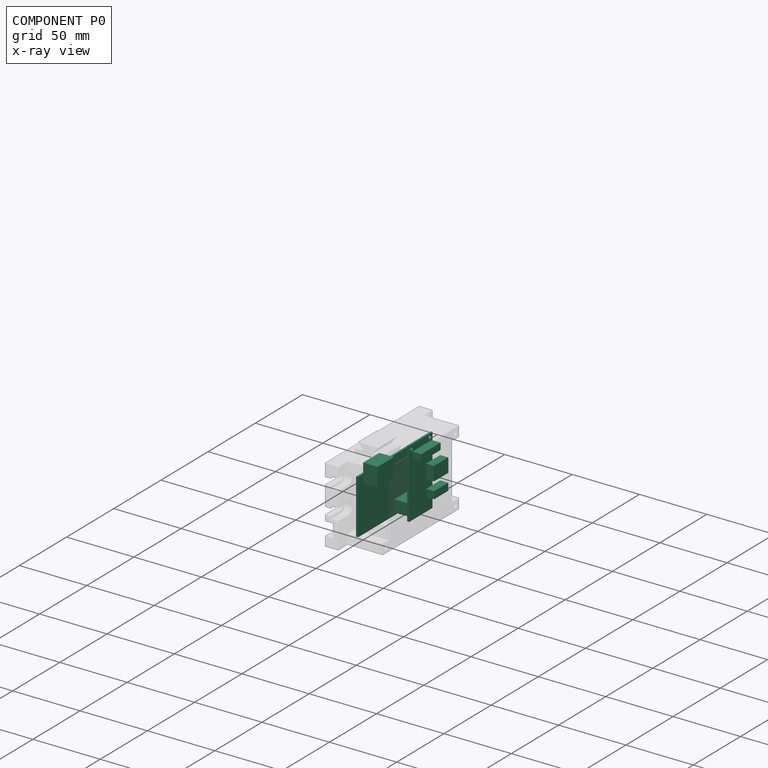
[diagram: component P0 — x-ray view]
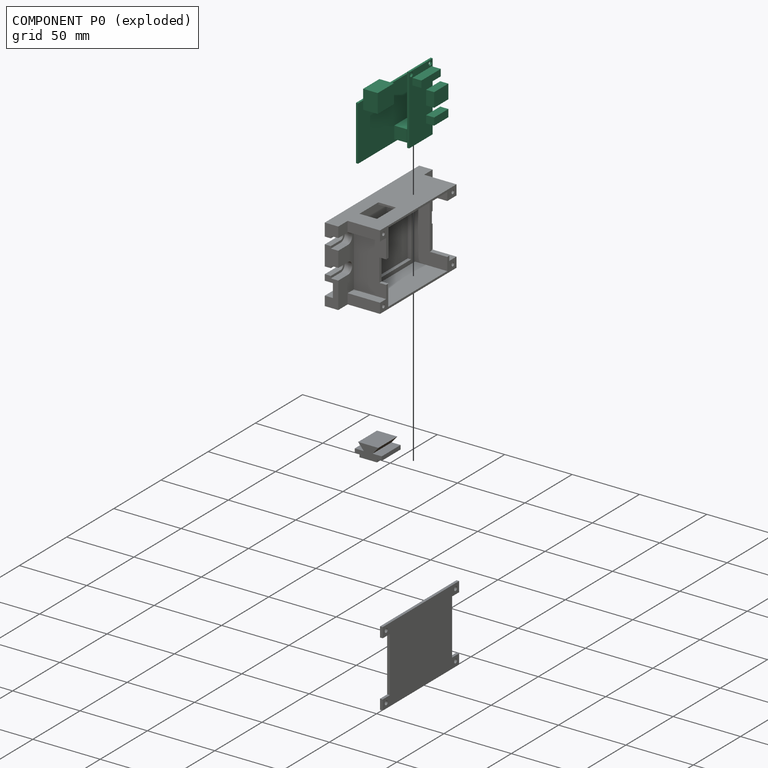
[diagram: component P0 — exploded]
COMPONENT P0 — recipe-attached (CADFS 00468189, mesh-verified: the recipe's output STEP matches this component's geometry to below the mesh-comparison resolution (tessellation chordal tolerance ~0.133 mm)).
Held by: PLANAR mate "Eben 1" to P2; PLANAR mate "Eben 3" to P2; PLANAR mate "Eben 2" to P2.
Construction recipe (FeatureScript — the CAD program that rebuilds this solid; sketch coordinates are in the units given by the * unit suffixes, e.g. mm):

FeatureScript 1511;
import(path : "onshape/std/geometry.fs", version : "1511.0");
import(path : "onshape/std/common.fs", version : "1511.0");
const mm = millimeter;
const VERTEX = EntityType.VERTEX;
const EDGE = EntityType.EDGE;
const FACE = EntityType.FACE;
const BODY = EntityType.BODY;
function v(x, y){return vector(x, y);}
function OD(order){return orderDisambiguation(order);}
function OSD(set){return originalSetDisambiguation(set);}
function TD(topology){return topologyDisambiguation(topology);}
function TDD(query){return trueDependencyDisambiguation(query);}
function sQuery(a, b, c) {return sketchEntityQuery(a, b, c);}

annotation { "Feature Type Name" : "Feature", "Feature Type Description" : "" }
export const myFeature = defineFeature(function(context is Context, id is Id, definition is map)
    precondition{}
    {
        {
            var Q0;
            Q0=qCreatedBy(makeId("Top.planeOp"),FACE);
            var sketch = newSketch(context, id + "F0", { "sketchPlane" : qUnion([Q0])});
            skLineSegment(sketch, "E0.bottom", {"start": v(30.4, 20.25) * mm, "end": v(-30.4, 20.25) * mm});
            skLineSegment(sketch, "E0.top", {"start": v(30.4, -20.25) * mm, "end": v(-30.4, -20.25) * mm});
            skLineSegment(sketch, "E0.left", {"start": v(30.4, 20.25) * mm, "end": v(30.4, -20.25) * mm});
            skLineSegment(sketch, "E0.right", {"start": v(-30.4, 20.25) * mm, "end": v(-30.4, -20.25) * mm});
            skPoint(sketch, "E0.middle", {"position": v(0, 0) * mm});
            skLineSegment(sketch, "E1", {"start": v(-42.92, 0) * mm, "end": v(50.86, 0) * mm, "construction": true});
            skPoint(sketch, "E1.endSnap0", {"position": v(-30.4, 0) * mm});
            skLineSegment(sketch, "E2", {"start": v(0, 28.72) * mm, "end": v(0, -27.65) * mm, "construction": true});
            skPoint(sketch, "E2.endSnap0", {"position": v(0, -20.25) * mm});
            skSolve(sketch);
        }
        {
            var Q0;
            Q0=makeQuery(id+"F0.imprint","IMPRINT",FACE,{"disambiguationData":[TD([[makeQuery(id+"F0.imprint","IMPRINT",EDGE,{"derivedFrom":sQuery(id+"F0.wireOp",EDGE,"E0.bottom")}),1.0]])]});
            extrude(context, id + "F1", {"entities" : qUnion([Q0]), "depth" : 1.5 * mm});
        }
        {
            var Q0;
            Q0=makeQuery(id+"F1.opExtrude","CAP_FACE",FACE,{"disambiguationData":[OSD([sQuery(id+"F0.wireOp",EDGE,"E0.bottom"),sQuery(id+"F0.wireOp",EDGE,"E0.top"),sQuery(id+"F0.wireOp",EDGE,"E0.left"),sQuery(id+"F0.wireOp",EDGE,"E0.right")])],"isStart":false});
            var sketch = newSketch(context, id + "F2", { "sketchPlane" : qUnion([Q0])});
            skLineSegment(sketch, "E3.bottom", {"start": v(7.8, -13.95) * mm, "end": v(25, -13.95) * mm});
            skLineSegment(sketch, "E3.top", {"start": v(7.8, -27.95) * mm, "end": v(25, -27.95) * mm});
            skLineSegment(sketch, "E3.left", {"start": v(7.8, -13.95) * mm, "end": v(7.8, -27.95) * mm});
            skLineSegment(sketch, "E3.right", {"start": v(25, -13.95) * mm, "end": v(25, -27.95) * mm});
            skSolve(sketch);
        }
        {
            var Q0;
            {var subQ0=sQuery(id+"F2.wireOp",EDGE,"E3.top");Q0=makeQuery(id+"F2.imprint","IMPRINT",FACE,{"disambiguationData":[TD([[makeQuery(id+"F2.imprint","IMPRINT",EDGE,{"derivedFrom":subQ0}),1.0]])]});}
            var Q1;
            {var subQ0=sQuery(id+"F2.wireOp",EDGE,"E3.bottom");Q1=makeQuery(id+"F2.imprint","IMPRINT",FACE,{"disambiguationData":[TD([[makeQuery(id+"F2.imprint","IMPRINT",EDGE,{"derivedFrom":subQ0}),-1.0]])]});}
            extrude(context, id + "F3", {"entities" : qUnion([Q0, Q1]), "operationType" : NewBodyOperationType.ADD, "depth" : 10.8 * mm});
        }
        {
            var Q0;
            Q0=makeQuery(id+"F1.opExtrude","CAP_FACE",FACE,{"disambiguationData":[OSD([sQuery(id+"F0.wireOp",EDGE,"E0.bottom"),sQuery(id+"F0.wireOp",EDGE,"E0.top"),sQuery(id+"F0.wireOp",EDGE,"E0.left"),sQuery(id+"F0.wireOp",EDGE,"E0.right")])],"isStart":false});
            var sketch = newSketch(context, id + "F4", { "sketchPlane" : qUnion([Q0])});
            skLineSegment(sketch, "E4.bottom", {"start": v(-7.9, 9.25) * mm, "end": v(-25.1, 9.25) * mm});
            skLineSegment(sketch, "E4.top", {"start": v(-7.9, 18.25) * mm, "end": v(-25.1, 18.25) * mm});
            skLineSegment(sketch, "E4.left", {"start": v(-7.9, 9.25) * mm, "end": v(-7.9, 18.25) * mm});
            skLineSegment(sketch, "E4.right", {"start": v(-25.1, 9.25) * mm, "end": v(-25.1, 18.25) * mm});
            skSolve(sketch);
        }
        {
            var Q0;
            Q0=makeQuery(id+"F4.imprint","IMPRINT",FACE,{"disambiguationData":[TD([[makeQuery(id+"F4.imprint","IMPRINT",EDGE,{"derivedFrom":sQuery(id+"F4.wireOp",EDGE,"E4.bottom")}),-1.0]])]});
            extrude(context, id + "F5", {"entities" : qUnion([Q0]), "operationType" : NewBodyOperationType.ADD, "depth" : 9.3 * mm});
        }
        {
            var Q0;
            Q0=makeQuery(id+"F1.opExtrude","CAP_FACE",FACE,{"disambiguationData":[OSD([sQuery(id+"F0.wireOp",EDGE,"E0.bottom"),sQuery(id+"F0.wireOp",EDGE,"E0.top"),sQuery(id+"F0.wireOp",EDGE,"E0.left"),sQuery(id+"F0.wireOp",EDGE,"E0.right")])],"isStart":true});
            var sketch = newSketch(context, id + "F6", { "sketchPlane" : qUnion([Q0])});
            skLineSegment(sketch, "E5.bottom", {"start": v(-21.4, -16.25) * mm, "end": v(-11.4, -16.25) * mm});
            skLineSegment(sketch, "E5.top", {"start": v(-21.4, -10.25) * mm, "end": v(-11.4, -10.25) * mm});
            skLineSegment(sketch, "E5.left", {"start": v(-21.4, -16.25) * mm, "end": v(-21.4, -10.25) * mm});
            skLineSegment(sketch, "E5.right", {"start": v(-11.4, -16.25) * mm, "end": v(-11.4, -10.25) * mm});
            skLineSegment(sketch, "E6.bottom", {"start": v(-2.6, -1.75) * mm, "end": v(6.4, -1.75) * mm});
            skLineSegment(sketch, "E6.top", {"start": v(-2.6, 10.75) * mm, "end": v(6.4, 10.75) * mm});
            skLineSegment(sketch, "E6.left", {"start": v(-2.6, -1.75) * mm, "end": v(-2.6, 10.75) * mm});
            skLineSegment(sketch, "E6.right", {"start": v(6.4, -1.75) * mm, "end": v(6.4, 10.75) * mm});
            skLineSegment(sketch, "E7.bottom", {"start": v(11.4, 12.25) * mm, "end": v(21.4, 12.25) * mm});
            skLineSegment(sketch, "E7.top", {"start": v(11.4, 18.25) * mm, "end": v(21.4, 18.25) * mm});
            skLineSegment(sketch, "E7.left", {"start": v(11.4, 12.25) * mm, "end": v(11.4, 18.25) * mm});
            skLineSegment(sketch, "E7.right", {"start": v(21.4, 12.25) * mm, "end": v(21.4, 18.25) * mm});
            skSolve(sketch);
        }
        {
            var Q0;
            Q0=makeQuery(id+"F6.imprint","IMPRINT",FACE,{"disambiguationData":[TD([[makeQuery(id+"F6.imprint","IMPRINT",EDGE,{"derivedFrom":sQuery(id+"F6.wireOp",EDGE,"E5.bottom")}),1.0]])]});
            var Q1;
            Q1=makeQuery(id+"F6.imprint","IMPRINT",FACE,{"disambiguationData":[TD([[makeQuery(id+"F6.imprint","IMPRINT",EDGE,{"derivedFrom":sQuery(id+"F6.wireOp",EDGE,"E6.bottom")}),1.0]])]});
            var Q2;
            Q2=makeQuery(id+"F6.imprint","IMPRINT",FACE,{"disambiguationData":[TD([[makeQuery(id+"F6.imprint","IMPRINT",EDGE,{"derivedFrom":sQuery(id+"F6.wireOp",EDGE,"E7.bottom")}),1.0]])]});
            extrude(context, id + "F7", {"entities" : qUnion([Q0, Q1, Q2]), "operationType" : NewBodyOperationType.ADD, "depth" : 2 * mm});
        }
        {
            var Q0;
            Q0=makeQuery(id+"F5.opExtrude","CAP_FACE",FACE,{"disambiguationData":[OSD([sQuery(id+"F4.wireOp",EDGE,"E4.bottom"),sQuery(id+"F4.wireOp",EDGE,"E4.top"),sQuery(id+"F4.wireOp",EDGE,"E4.left"),sQuery(id+"F4.wireOp",EDGE,"E4.right")])],"isStart":false});
            var sketch = newSketch(context, id + "F8", { "sketchPlane" : qUnion([Q0])});
            skLineSegment(sketch, "E8", {"start": v(-27.2, 13.75) * mm, "end": v(-5.5, 13.75) * mm, "construction": true});
            skPoint(sketch, "E8.startSnap0", {"position": v(-25.1, 13.75) * mm});
            skPoint(sketch, "E8.endSnap0", {"position": v(-7.9, 13.75) * mm});
            skLineSegment(sketch, "E9", {"start": v(-16.5, 22.15) * mm, "end": v(-16.5, 6.3) * mm, "construction": true});
            skPoint(sketch, "E9.startSnap0", {"position": v(-16.5, 18.25) * mm});
            skPoint(sketch, "E9.endSnap0", {"position": v(-16.5, 9.25) * mm});
            skLineSegment(sketch, "E10.bottom", {"start": v(-11, 16.25) * mm, "end": v(-22, 16.25) * mm});
            skLineSegment(sketch, "E10.top", {"start": v(-11, 11.25) * mm, "end": v(-22, 11.25) * mm});
            skLineSegment(sketch, "E10.left", {"start": v(-11, 16.25) * mm, "end": v(-11, 11.25) * mm});
            skLineSegment(sketch, "E10.right", {"start": v(-22, 16.25) * mm, "end": v(-22, 11.25) * mm});
            skPoint(sketch, "E10.middle", {"position": v(-16.5, 13.75) * mm});
            skSolve(sketch);
        }
        {
            var Q0;
            Q0=makeQuery(id+"F8.imprint","IMPRINT",FACE,{"disambiguationData":[TD([[makeQuery(id+"F8.imprint","IMPRINT",EDGE,{"derivedFrom":sQuery(id+"F8.wireOp",EDGE,"E10.bottom")}),1.0]])]});
            extrude(context, id + "F9", {"entities" : qUnion([Q0]), "operationType" : NewBodyOperationType.ADD, "depth" : 2 * mm});
        }
        {
            var Q0;
            Q0=makeQuery(id+"F9.opExtrude","CAP_FACE",FACE,{"disambiguationData":[OSD([sQuery(id+"F8.wireOp",EDGE,"E10.bottom"),sQuery(id+"F8.wireOp",EDGE,"E10.top"),sQuery(id+"F8.wireOp",EDGE,"E10.left"),sQuery(id+"F8.wireOp",EDGE,"E10.right")])],"isStart":false});
            var sketch = newSketch(context, id + "F10", { "sketchPlane" : qUnion([Q0])});
            skLineSegment(sketch, "E11.bottom", {"start": v(-30.4, 20.25) * mm, "end": v(-5.4, 20.25) * mm});
            skLineSegment(sketch, "E11.top", {"start": v(-30.4, -30.75) * mm, "end": v(-5.4, -30.75) * mm});
            skLineSegment(sketch, "E11.left", {"start": v(-30.4, 20.25) * mm, "end": v(-30.4, -30.75) * mm});
            skLineSegment(sketch, "E11.right", {"start": v(-5.4, 20.25) * mm, "end": v(-5.4, -30.75) * mm});
            skSolve(sketch);
        }
        {
            var Q0;
            Q0=makeQuery(id+"F10.imprint","IMPRINT",FACE,{"disambiguationData":[TD([[makeQuery(id+"F10.imprint","IMPRINT",EDGE,{"derivedFrom":sQuery(id+"F10.wireOp",EDGE,"E11.bottom")}),-1.0]])]});
            var Q1;
            Q1=makeQuery(id+"F10.imprint","IMPRINT",FACE,{"disambiguationData":[TD([[makeQuery(id+"F10.imprint","IMPRINT",EDGE,{"derivedFrom":makeQuery(id+"F9.opExtrude","CAP_EDGE",EDGE,{"disambiguationData":[OSD([sQuery(id+"F8.wireOp",EDGE,"E10.bottom")])],"isStart":false})}),1.0]])]});
            extrude(context, id + "F11", {"entities" : qUnion([Q0, Q1]), "operationType" : NewBodyOperationType.ADD, "depth" : 1.5 * mm});
        }
        {
            var Q0;
            Q0=makeQuery(id+"F11.opExtrude","CAP_FACE",FACE,{"disambiguationData":[OSD([sQuery(id+"F10.wireOp",EDGE,"E11.bottom"),sQuery(id+"F10.wireOp",EDGE,"E11.top"),sQuery(id+"F10.wireOp",EDGE,"E11.left"),sQuery(id+"F10.wireOp",EDGE,"E11.right")])],"isStart":false});
            var sketch = newSketch(context, id + "F12", { "sketchPlane" : qUnion([Q0])});
            skLineSegment(sketch, "E12.bottom", {"start": v(-23.4, 10.25) * mm, "end": v(-38.4, 10.25) * mm});
            skLineSegment(sketch, "E12.top", {"start": v(-23.4, 4.75) * mm, "end": v(-38.4, 4.75) * mm});
            skLineSegment(sketch, "E12.left", {"start": v(-23.4, 10.25) * mm, "end": v(-23.4, 4.75) * mm});
            skLineSegment(sketch, "E12.right", {"start": v(-38.4, 10.25) * mm, "end": v(-38.4, 4.75) * mm});
            skLineSegment(sketch, "E13.bottom", {"start": v(-23.4, -1.75) * mm, "end": v(-38.4, -1.75) * mm});
            skLineSegment(sketch, "E13.top", {"start": v(-23.4, -12.25) * mm, "end": v(-38.4, -12.25) * mm});
            skLineSegment(sketch, "E13.left", {"start": v(-23.4, -1.75) * mm, "end": v(-23.4, -12.25) * mm});
            skLineSegment(sketch, "E13.right", {"start": v(-38.4, -1.75) * mm, "end": v(-38.4, -12.25) * mm});
            skSolve(sketch);
        }
        {
            var Q0;
            {var subQ0=sQuery(id+"F12.wireOp",EDGE,"E12.right");Q0=makeQuery(id+"F12.imprint","IMPRINT",FACE,{"disambiguationData":[TD([[makeQuery(id+"F12.imprint","IMPRINT",EDGE,{"derivedFrom":subQ0}),1.0]])]});}
            var Q1;
            {var subQ0=sQuery(id+"F12.wireOp",EDGE,"E12.left");Q1=makeQuery(id+"F12.imprint","IMPRINT",FACE,{"disambiguationData":[TD([[makeQuery(id+"F12.imprint","IMPRINT",EDGE,{"derivedFrom":subQ0}),-1.0]])]});}
            var Q2;
            {var subQ0=sQuery(id+"F12.wireOp",EDGE,"E13.left");Q2=makeQuery(id+"F12.imprint","IMPRINT",FACE,{"disambiguationData":[TD([[makeQuery(id+"F12.imprint","IMPRINT",EDGE,{"derivedFrom":subQ0}),-1.0]])]});}
            var Q3;
            {var subQ0=sQuery(id+"F12.wireOp",EDGE,"E13.right");Q3=makeQuery(id+"F12.imprint","IMPRINT",FACE,{"disambiguationData":[TD([[makeQuery(id+"F12.imprint","IMPRINT",EDGE,{"derivedFrom":subQ0}),1.0]])]});}
            extrude(context, id + "F13", {"entities" : qUnion([Q0, Q1, Q2, Q3]), "operationType" : NewBodyOperationType.ADD, "depth" : 6 * mm});
        }
        {
            var Q0;
            Q0=makeQuery(id+"F11.opExtrude","CAP_FACE",FACE,{"disambiguationData":[OSD([sQuery(id+"F10.wireOp",EDGE,"E11.bottom"),sQuery(id+"F10.wireOp",EDGE,"E11.top"),sQuery(id+"F10.wireOp",EDGE,"E11.left"),sQuery(id+"F10.wireOp",EDGE,"E11.right")])],"isStart":false});
            var sketch = newSketch(context, id + "F14", { "sketchPlane" : qUnion([Q0])});
            skLineSegment(sketch, "E14.bottom", {"start": v(-8.9, -20.75) * mm, "end": v(-29.4, -20.75) * mm});
            skLineSegment(sketch, "E14.top", {"start": v(-8.9, -25.75) * mm, "end": v(-29.4, -25.75) * mm});
            skLineSegment(sketch, "E14.left", {"start": v(-8.9, -20.75) * mm, "end": v(-8.9, -25.75) * mm});
            skLineSegment(sketch, "E14.right", {"start": v(-29.4, -20.75) * mm, "end": v(-29.4, -25.75) * mm});
            skSolve(sketch);
        }
        {
            var Q0;
            Q0=makeQuery(id+"F14.imprint","IMPRINT",FACE,{"disambiguationData":[TD([[makeQuery(id+"F14.imprint","IMPRINT",EDGE,{"derivedFrom":sQuery(id+"F14.wireOp",EDGE,"E14.bottom")}),1.0]])]});
            extrude(context, id + "F15", {"entities" : qUnion([Q0]), "operationType" : NewBodyOperationType.ADD, "depth" : 6.7 * mm});
        }
        {
            var Q0;
            Q0=makeQuery(id+"F11.opExtrude","CAP_FACE",FACE,{"disambiguationData":[OSD([sQuery(id+"F10.wireOp",EDGE,"E11.bottom"),sQuery(id+"F10.wireOp",EDGE,"E11.top"),sQuery(id+"F10.wireOp",EDGE,"E11.left"),sQuery(id+"F10.wireOp",EDGE,"E11.right")])],"isStart":false});
            var sketch = newSketch(context, id + "F16", { "sketchPlane" : qUnion([Q0])});
            skPoint(sketch, "E15", {"position": v(-27.9, -28.25) * mm});
            skPoint(sketch, "E16", {"position": v(-7.9, -28.25) * mm});
            skSolve(sketch);
        }
        {
            var Q0;
            Q0=sQuery(id+"F16.wireOp",VERTEX,"E16");
            var Q1;
            Q1=sQuery(id+"F16.wireOp",VERTEX,"E15");
            var Q2;
            Q2=makeQuery(id+"F1.opExtrude","SWEPT_BODY",BODY,{"disambiguationData":[OSD([sQuery(id+"F0.wireOp",EDGE,"E0.bottom"),sQuery(id+"F0.wireOp",EDGE,"E0.top"),sQuery(id+"F0.wireOp",EDGE,"E0.left"),sQuery(id+"F0.wireOp",EDGE,"E0.right")])]});
            hole(context, id + "F17", {"style" : HoleStyle.SIMPLE, "endStyle" : HoleEndStyle.THROUGH, "holeDiameter" : 3 * mm, "isTappedThrough" : true, "tappedDepth" : 12 * mm, "tapClearance" : 3, "locations" : qUnion([Q0, Q1]), "scope" : qUnion([Q2])});
        }
    });
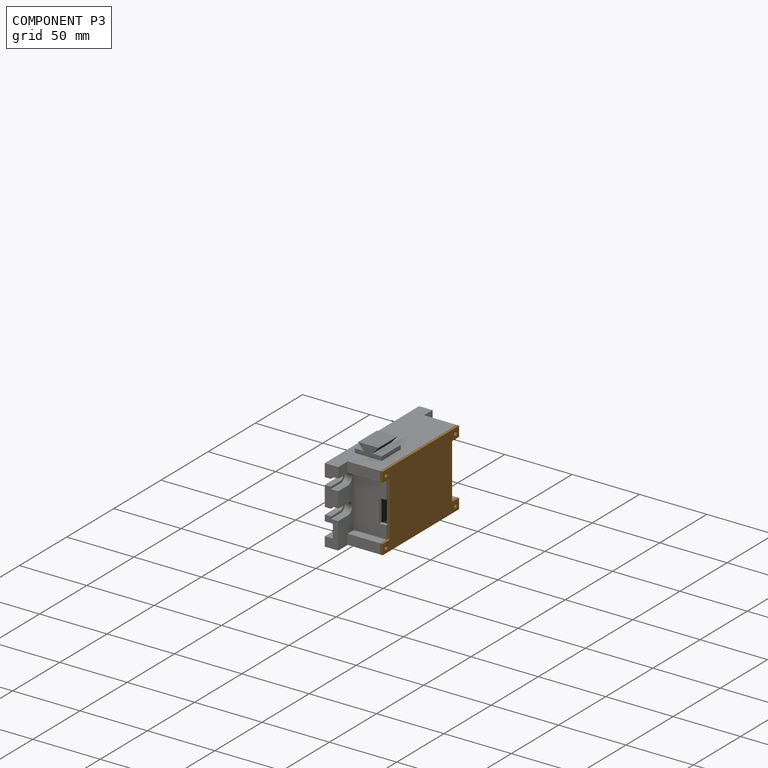
[diagram: component P3 — assembled]
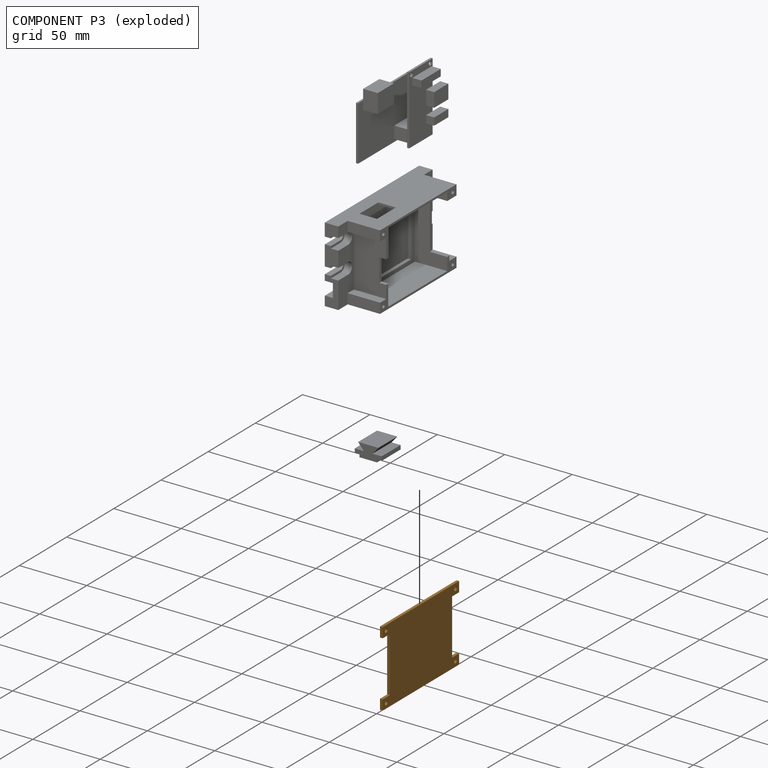
[diagram: component P3 — exploded]
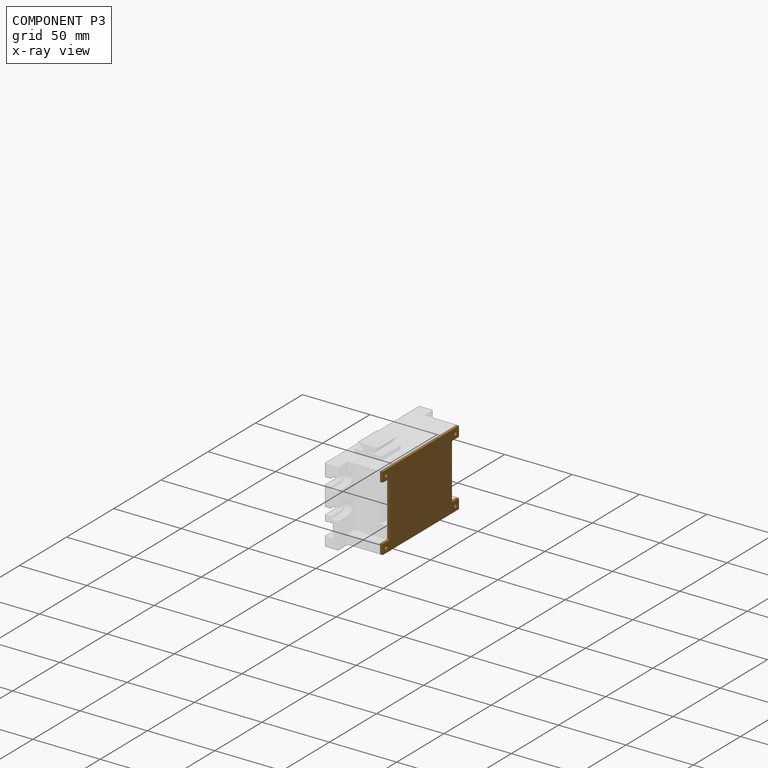
[diagram: component P3 — x-ray view]
COMPONENT P3 — geometry summary (no construction recipe available for this part):
  bounding box: 81.0 x 56.0 x 2.0 mm
  B-rep topology: 1 solid, 18 faces, 96 edges
  volume: 7785 mm^3 (86% of its bounding box)
  symmetry: 2-fold rotationally symmetric about the x axis; 2-fold rotationally symmetric about the y axis; 2-fold rotationally symmetric about the z axis; mirror-symmetric across its x mid-plane, y mid-plane, z mid-plane
Held by: PLANAR mate "Eben 6" to P2; PLANAR mate "Eben 4" to P2; PLANAR mate "Eben 5" to P2.
PROVENANCE & LICENSES
Assembly (occurrences, transforms, mates, per-part STEP geometry): AutoMate dataset, Zenodo record 7776208, CC0.
Construction recipes: CADFS (HuggingFace VladPyatov/CADFS, CC-BY-4.0, layered over the ABC dataset), FeatureScript reconstruction programs keyed by ABC model id.
Join: ABC meta listings map ABC model id -> Onshape documentId; within a shared document, parts are matched by geometric signature (bounding-box dims + volume at 0.1% relative tolerance, exact B-rep face/solid counts).
Verification: 2 of this assembly's 4 components carry a recipe attachment, and every attachment is mesh-verified: the CADFS STEP and the AutoMate member STEP were compared as meshes in their shared local frame (symmetric sampled-point-to-mesh distance); worst across the 2 attachments: below the mesh-comparison resolution (tessellation chordal tolerance ~0.179 mm) on a 120 mm part.
Renders: orthographic iso camera (az 35 / el 25); the floor grid conveys scale (grid pitch printed in each image; no ruler). In the exploded view each component is displaced by its stored offset vector: the offsets alone carry the explosion direction (mate normal/axis signs are not orientation cues and do not encode it), and separation distances are assigned per mate-chain, not proportionally to assembly-order depth.
